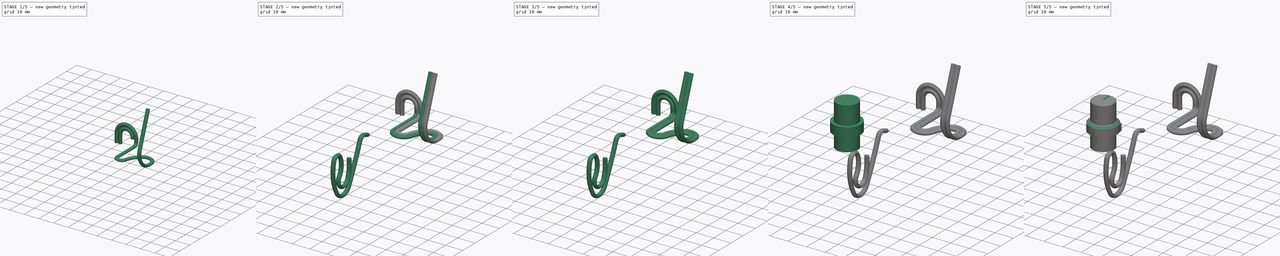
[diagram: build sequence overview — one tinted view per stage of 5, left to right]
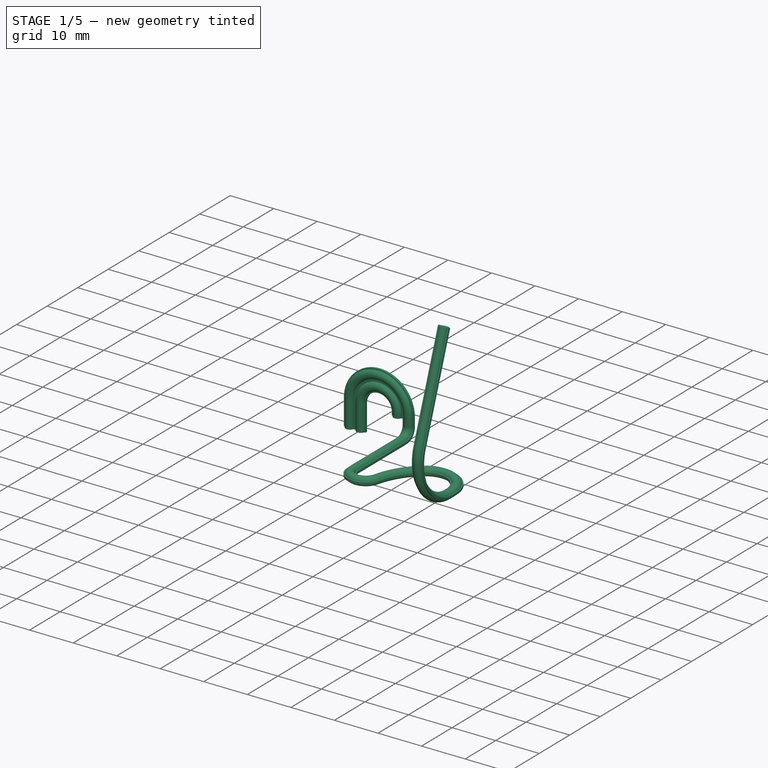
[diagram: stage 1 of 5 — iso view after this stage's code; geometry added in this stage tinted green]
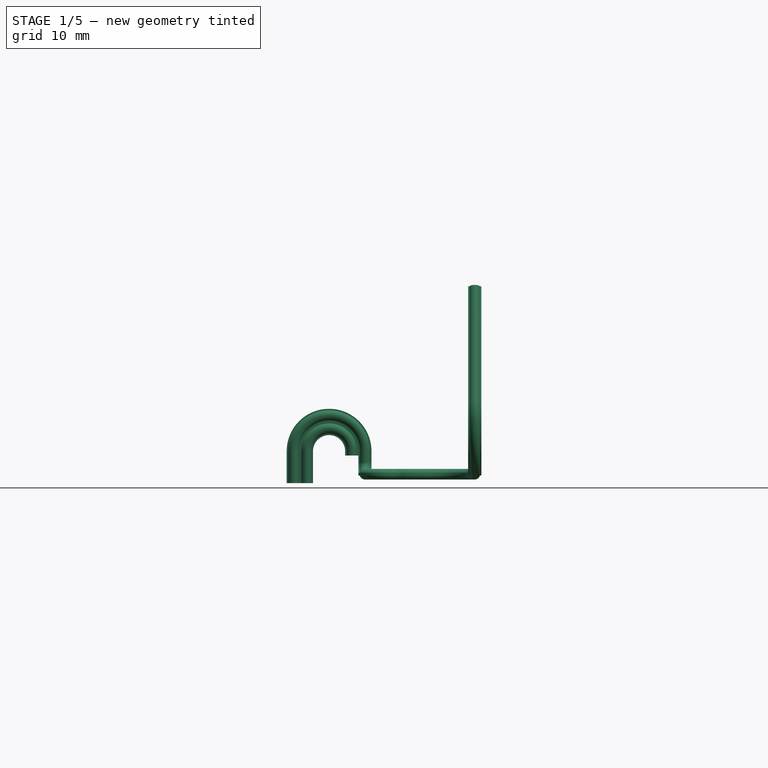
[diagram: stage 1 of 5 — front view after this stage's code; geometry added in this stage tinted green]
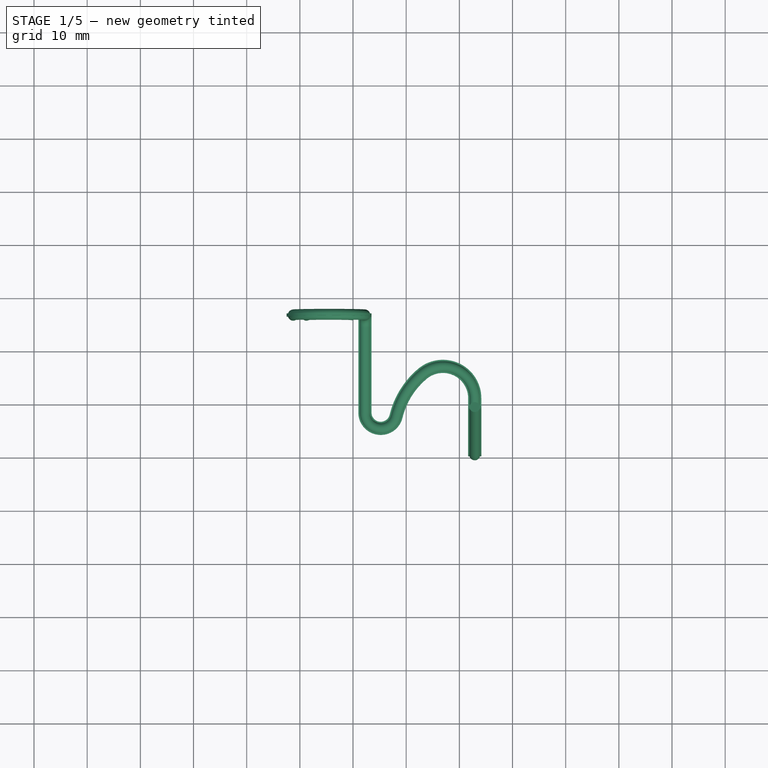
[diagram: stage 1 of 5 — top view after this stage's code; geometry added in this stage tinted green]
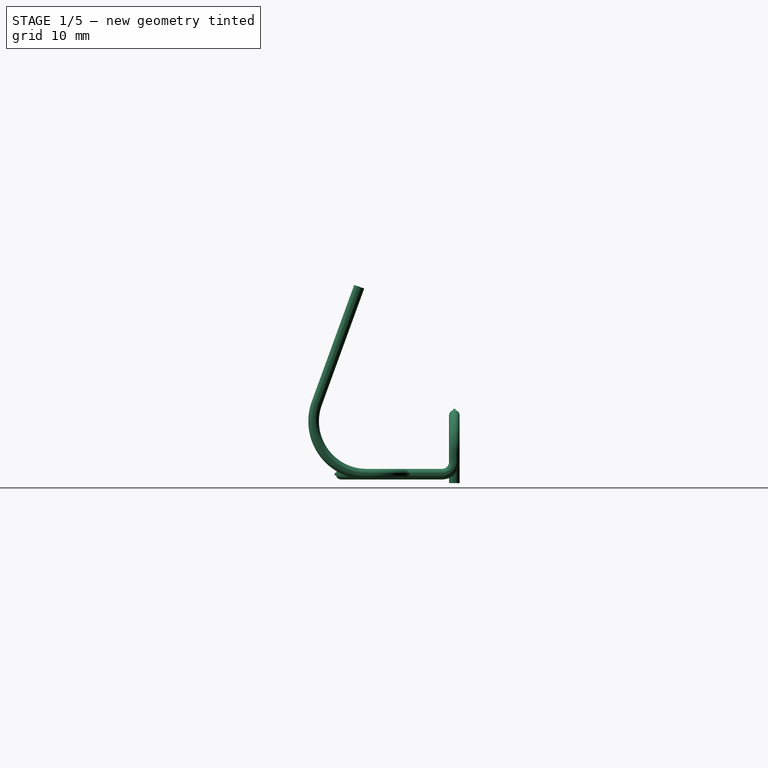
[diagram: stage 1 of 5 — right view after this stage's code; geometry added in this stage tinted green]
FCSTD DOCUMENT  (FreeCAD 1.0R39319 (Git))
Label: TheThing_v81_multiJoin_parts_assy
License: CERN Open Hardware Licence permissive
LicenseURL: https://cern-ohl.web.cern.ch/
objects: Part::Feature×104, Sketcher::SketchObject×22, PartDesign::Body×13, App::Part×12, PartDesign::Plane×11, PartDesign::AdditivePipe×9, PartDesign::FeatureBase×9, PartDesign::SubShapeBinder×9, App::DocumentObjectGroup×5, PartDesign::Pad×5, App::VRMLObject×2, TechDraw::DrawSVGTemplate×1, TechDraw::DrawPage×1, PartDesign::PolarPattern×1, PartDesign::Line×1, PartDesign::Groove×1, PartDesign::Chamfer×1, PartDesign::SubtractivePipe×1
note: 253 computed .brp shape members not serialized (recipe doc carries the construction recipe); baked Part::Feature solids carry a one-line shape summary decoded from their .brp

FEATURE [PartDesign::Body] Body009
  AllowCompound = false
  BaseFeature = -> Body
  Group = -> [Clone008]
  Origin = -> Origin051
  Placement = pos=(-22.86,0,0) rot=(0,0,1;0rad)
  Tip = -> Clone008
FEATURE [App::DocumentObjectGroup] Group003  label="Flat_Cable_10x"
  Group = -> [Body,Body001,Body002,Body003,Body004,Body005,Body006,Body007,Body008,Body009]
FEATURE [Part::Feature] Solid  label="PinSocket_1x02_P2.54mm_Vertical"
  Placement = pos=(30.3,8.89176,17.5439) rot=(-0.171088,0.171088,0.970288;1.60095rad)
  shape: bbox 5.08 x 5.294 x 11.37 mm, 62 faces (baked)
FEATURE [PartDesign::SubShapeBinder] Binder  label="Binder(PinSocket_1x02_P2.54mm_Vertical)"
  BindCopyOnChange = 0
  BindMode = 0
  ClaimChildren = false
  Context = -> Body010 [Binder.]
  Fuse = false
  MakeFace = true
  OffsetFill = false
  OffsetIntersection = false
  OffsetJoinType = 0
  OffsetOpenResult = false
  PartialLoad = false
  Relative = true
  Support = -> [Solid]
  _Version = 8
FEATURE [PartDesign::SubShapeBinder] Binder001  label="Binder001(9V_conn)"
  BindCopyOnChange = 0
  BindMode = 0
  ClaimChildren = false
  Context = -> Body010 [Binder001.]
  Fuse = false
  MakeFace = true
  OffsetFill = false
  OffsetIntersection = false
  OffsetJoinType = 0
  OffsetOpenResult = false
  PartialLoad = false
  Relative = true
  Support = -> [_68005_cp005_cp]
  _Version = 8
FEATURE [PartDesign::SubShapeBinder] Binder002  label="Binder002(Pocket_tab)"
  BindCopyOnChange = 0
  BindMode = 0
  ClaimChildren = false
  Context = -> Body010 [Binder002.]
  Fuse = false
  MakeFace = true
  OffsetFill = false
  OffsetIntersection = false
  OffsetJoinType = 0
  OffsetOpenResult = false
  PartialLoad = false
  Relative = true
  Support = -> [Pocket_tab]
  _Version = 8
FEATURE [Sketcher::SketchObject] Sketch
  ArcFitTolerance = 1e-06
  ExternalGeometry = -> [Binder001]
  FullyConstrained = true
  MakeInternals = false
  MapMode = 5
  Placement = pos=(0,2.34e-14,-19.2055) rot=(0,0,1;0rad)
  sketch-geometry (19):
    g0: ArcOfCircle CenterX=1.23825 CenterY=26.8446 CenterZ=0 NormalX=0 NormalY=0 NormalZ=1 AngleXU=0 Radius=1 StartAngle=3.39427 EndAngle=6.03051
    g1: LineSegment StartX=2.47649 StartY=26.5946 StartZ=0 EndX=2.47649 EndY=27.0946 EndZ=0
    g2: LineSegment StartX=2.47649 StartY=27.0946 StartZ=0 EndX=2.20649 EndY=27.0946 EndZ=0
    g3: LineSegment StartX=0 StartY=27.0946 StartZ=0 EndX=0 EndY=26.5946 EndZ=0
    g4: LineSegment StartX=0 StartY=26.5946 StartZ=0 EndX=0.27 EndY=26.5946 EndZ=0
    g5: GeomPoint [constr] X=1.23825 Y=26.8446 Z=0
    g6: ArcOfCircle CenterX=1.23825 CenterY=26.8446 CenterZ=0 NormalX=0 NormalY=0 NormalZ=1 AngleXU=0 Radius=1 StartAngle=0.25268 EndAngle=2.88891
    g7: LineSegment StartX=0.27 StartY=27.0946 StartZ=0 EndX=0 EndY=27.0946 EndZ=0
    g8: LineSegment StartX=2.20649 StartY=26.5946 StartZ=0 EndX=2.47649 EndY=26.5946 EndZ=0
    g9: LineSegment [constr] StartX=2.47649 StartY=26.8446 StartZ=0 EndX=6.34996 EndY=26.8446 EndZ=0
    g10: ArcOfCircle [constr] CenterX=-1.23825 CenterY=26.8446 CenterZ=0 NormalX=0 NormalY=0 NormalZ=1 AngleXU=0 Radius=1 StartAngle=3.39427 EndAngle=6.03051
    g11: LineSegment [constr] StartX=0 StartY=26.5946 StartZ=0 EndX=0 EndY=27.0946 EndZ=0
    g12: LineSegment [constr] StartX=0 StartY=27.0946 StartZ=0 EndX=-0.27 EndY=27.0946 EndZ=0
    g13: LineSegment [constr] StartX=-2.47649 StartY=27.0946 StartZ=0 EndX=-2.47649 EndY=26.5946 EndZ=0
    g14: LineSegment [constr] StartX=-2.47649 StartY=26.5946 StartZ=0 EndX=-2.20649 EndY=26.5946 EndZ=0
    g15: GeomPoint [constr] X=-1.23825 Y=26.8446 Z=0
    g16: LineSegment [constr] StartX=-2.20649 StartY=27.0946 StartZ=0 EndX=-2.47649 EndY=27.0946 EndZ=0
    g17: ArcOfCircle [constr] CenterX=-1.23825 CenterY=26.8446 CenterZ=0 NormalX=0 NormalY=0 NormalZ=1 AngleXU=0 Radius=1 StartAngle=0.25268 EndAngle=2.88891
    g18: LineSegment [constr] StartX=-0.27 StartY=26.5946 StartZ=0 EndX=0 EndY=26.5946 EndZ=0
  constraints (51):
    c: Coincident(g1,g2)
    c: Coincident(g7,g3)
    c: Coincident(g3,g4)
    c: Coincident(g8,g1)
    c: Horizontal(g2)
    c: Horizontal(g4)
    c: Vertical(g1)
    c: Vertical(g3)
    c: Symmetric(g7,g1,g5)
    c: Coincident(g5,g0)
    c: Diameter(g0) = 2
    c: DistanceY(g3,g3) = 0.5
    c: Equal(g0,g6)
    c: Coincident(g0,g6)
    c: Coincident(g2,g6)
    c: Coincident(g7,g6)
    c: Coincident(g4,g0)
    c: Coincident(g8,g0)
    c: Horizontal(g7)
    c: Horizontal(g8)
    c: Equal(g7,g2)
    c: DistanceX(g7,g7) = 0.27
    c: Horizontal(g9)
    c: Equal(g3,g1)
    c: Symmetric(g1,g1,g9)
    c: Symmetric(g-4,g-4,g9)
    c: Coincident(g11,g12)
    c: Coincident(g16,g13)
    c: Coincident(g13,g14)
    c: Coincident(g18,g11)
    c: Horizontal(g12)
    c: Horizontal(g14)
    c: Vertical(g11)
    c: Vertical(g13)
    c: Symmetric(g16,g11,g15)
    c: Coincident(g15,g10)
    c: Coincident(g16,g17)
    c: Equal(g10,g17)
    c: Coincident(g17,g12)
    c: Coincident(g10,g17)
    c: Coincident(g14,g10)
    c: Coincident(g18,g10)
    c: Horizontal(g16)
    c: Horizontal(g18)
    c: Equal(g12,g16)
    c: Equal(g13,g11)
    c: Equal(g17,g6)
    c: Equal(g12,g7)
    c: Equal(g11,g3)
    c: PointOnObject(g7,g-2)
    c: Coincident(g12,g7)
FEATURE [PartDesign::Plane] DatumPlane001
  AttachmentOffset = pos=(0,0,-0.8) rot=(0,0,1;0rad)
  Length = 60
  MapMode = 5
  Placement = pos=(6.1e-15,26.832,3.28e-14) rot=(0,0.707107,0.707107;3.14159rad)
  ResizeMode = 0
  Width = 60
FEATURE [Sketcher::SketchObject] Sketch003
  ArcFitTolerance = 1e-06
  ExternalGeometry = -> [Sketch]
  FullyConstrained = true
  MakeInternals = false
  MapMode = 5
  Placement = pos=(6.1e-15,26.832,3.28e-14) rot=(0,0.707107,0.707107;3.14159rad)
  sketch-geometry (3):
    g0: LineSegment StartX=-3.73e-14 StartY=-19.2055 StartZ=0 EndX=-3.73e-14 EndY=-13.2055 EndZ=0
    g1: ArcOfCircle CenterX=-5.5 CenterY=-13.2055 CenterZ=0 NormalX=0 NormalY=0 NormalZ=1 AngleXU=0 Radius=5.5 StartAngle=1.88e-14 EndAngle=3.14159
    g2: LineSegment StartX=-11 StartY=-13.2055 StartZ=0 EndX=-11 EndY=-14.0055 EndZ=0
  constraints (8):
    c: Vertical(g0)
    c: Tangent(g0,g1) = -1.5708
    c: Angle(g1) = 3.14159
    c: Tangent(g1,g2) = -1.5708
    c: DistanceY(g0,g0) = 6
    c: Radius(g1) = 5.5
    c: DistanceY(g2,g2) = 0.8
    c: Coincident(g0,g-3)
FEATURE [PartDesign::Plane] DatumPlane002
  AttachmentOffset = pos=(0,0,0) rot=(0.57735,0.57735,0.57735;2.0944rad)
  Length = 62.0136
  MapMode = 7
  Placement = pos=(11,26.832,-13.2055) rot=(0.57735,0.57735,0.57735;2.0944rad)
  ResizeMode = 0
  Width = 60.1816
FEATURE [Sketcher::SketchObject] Sketch004
  ArcFitTolerance = 1e-06
  ExternalGeometry = -> [Sketch003]
  FullyConstrained = true
  MakeInternals = false
  MapMode = 5
  Placement = pos=(11,26.832,-13.2055) rot=(0.57735,0.57735,0.57735;2.0944rad)
  sketch-geometry (3):
    g0: LineSegment StartX=0 StartY=-0.8 StartZ=0 EndX=0 EndY=-2 EndZ=0
    g1: ArcOfCircle CenterX=-2.3 CenterY=-2 CenterZ=0 NormalX=0 NormalY=0 NormalZ=1 AngleXU=0 Radius=2.3 StartAngle=4.71239 EndAngle=6.28319
    g2: LineSegment StartX=-2.3 StartY=-4.3 StartZ=0 EndX=-18.3 EndY=-4.3 EndZ=0
  constraints (8):
    c: Coincident(g-3,g0)
    c: PointOnObject(g0,g-2)
    c: Tangent(g0,g1) = 1.5708
    c: Angle(g1) = 1.5708
    c: Tangent(g1,g2) = 1.5708
    c: DistanceY(g0,g0) = 1.2
    c: Radius(g1) = 2.3
    c: DistanceX(g2,g2) = 16
FEATURE [PartDesign::Plane] DatumPlane003
  AttachmentOffset = pos=(0,0,0) rot=(-0.57735,0.57735,0.57735;2.0944rad)
  Length = 60
  MapMode = 45
  Placement = pos=(11,16.532,-17.5055) rot=(0,0,1;4.71239rad)
  ResizeMode = 0
  Width = 60
FEATURE [Sketcher::SketchObject] Sketch005
  ArcFitTolerance = 1e-06
  ExternalGeometry = -> [Sketch004,Binder]
  FullyConstrained = false
  MakeInternals = false
  MapMode = 5
  Placement = pos=(11,16.532,-17.5055) rot=(0,0,-1;1.5708rad)
  sketch-geometry (3):
    g0: ArcOfCircle CenterX=8 CenterY=4.21059 CenterZ=0 NormalX=0 NormalY=0 NormalZ=1 AngleXU=0 Radius=4.21059 StartAngle=4.71239 EndAngle=7.61609
    g1: ArcOfCircle CenterX=12.2495 CenterY=21.7356 CenterZ=0 NormalX=0 NormalY=0 NormalZ=1 AngleXU=0 Radius=13.8222 StartAngle=3.8393 EndAngle=4.4745
    g2: ArcOfCircle CenterX=5.29691 CenterY=15.9067 CenterZ=0 NormalX=0 NormalY=0 NormalZ=1 AngleXU=0 Radius=4.74953 StartAngle=1.5708 EndAngle=3.8393
  constraints (5):
    c: Tangent(g0,g1) = 1.5708
    c: Tangent(g1,g2) = -1.5708
    c: PointOnObject(g2,g-5)
    c: Perpendicular(g2,g-5)
    c: Tangent(g0,g-3) = -1.5708
FEATURE [PartDesign::Plane] DatumPlane004
  AttachmentOffset = pos=(0,0,-2.5) rot=(0,0,1;0rad)
  Length = 60
  MapMode = 5
  Placement = pos=(31.61,3.25e-14,6e-16) rot=(0.57735,0.57735,0.57735;2.0944rad)
  ResizeMode = 0
  Width = 60
FEATURE [Sketcher::SketchObject] Sketch006
  ArcFitTolerance = 1e-06
  ExternalGeometry = -> [Sketch005,Binder]
  FullyConstrained = false
  MakeInternals = false
  MapMode = 5
  Placement = pos=(31.61,3.25e-14,6e-16) rot=(0.57735,0.57735,0.57735;2.0944rad)
  sketch-geometry (3):
    g0: LineSegment StartX=11.2351 StartY=-17.5055 StartZ=0 EndX=10.3247 EndY=-17.5055 EndZ=0
    g1: ArcOfCircle CenterX=10.3247 CenterY=-7.56961 CenterZ=0 NormalX=0 NormalY=0 NormalZ=1 AngleXU=0 Radius=9.9359 StartAngle=2.79253 EndAngle=4.71239
    g2: LineSegment StartX=0.988054 StartY=-4.17133 StartZ=0 EndX=8.96016 EndY=17.7319 EndZ=0
  constraints (6):
    c: Coincident(g0,g-3)
    c: Horizontal(g0)
    c: Tangent(g0,g1) = 1.5708
    c: Perpendicular(g2,g-4)
    c: Symmetric(g-4,g-4,g2)
    c: Tangent(g1,g2) = 1.5708
FEATURE [TechDraw::DrawSVGTemplate] Template
  Height = 210
  Orientation = 1
  Template = <userpath>/Documents/FreeCAD/Templates/A4_Landscape_blank.svg
  Width = 297
FEATURE [TechDraw::DrawPage] Page
  KeepUpdated = true
  NextBalloonIndex = 1
  ProjectionType = 1
  Template = -> Template
FEATURE [PartDesign::AdditivePipe] AdditivePipe001
  AuxilleryCurvelinear = true
  AuxillerySpineTangent = false
  Binormal = (0,0,0)
  Mode = 0
  Placement = pos=(0,2.34e-14,-19.2055) rot=(0,0,1;0rad)
  Profile = -> Sketch
  Refine = true
  Spine = -> Sketch003
  SpineTangent = false
  Suppressed = false
  Transformation = 0
  Transition = 0
FEATURE [PartDesign::SubShapeBinder] Binder003  label="Binder(PinSocket_1x02_P2.54mm_Vertical)001"
  BindCopyOnChange = 0
  BindMode = 0
  ClaimChildren = false
  Context = -> Body011 [Binder003.]
  Fuse = false
  MakeFace = true
  OffsetFill = false
  OffsetIntersection = false
  OffsetJoinType = 0
  OffsetOpenResult = false
  PartialLoad = false
  Relative = true
  _Version = 8
FEATURE [Sketcher::SketchObject] Sketch007
  ArcFitTolerance = 1e-06
  ExternalGeometry = -> [Binder003]
  FullyConstrained = true
  MakeInternals = false
  MapMode = 5
  Placement = pos=(0,2.34e-14,-19.2055) rot=(0,0,1;0rad)
  sketch-geometry (19):
    g0: ArcOfCircle [constr] CenterX=1.23825 CenterY=11.4144 CenterZ=0 NormalX=0 NormalY=0 NormalZ=1 AngleXU=0 Radius=1 StartAngle=3.39427 EndAngle=6.03051
    g1: LineSegment [constr] StartX=2.47649 StartY=11.1644 StartZ=0 EndX=2.47649 EndY=11.6644 EndZ=0
    g2: LineSegment [constr] StartX=2.47649 StartY=11.6644 StartZ=0 EndX=2.20649 EndY=11.6644 EndZ=0
    g3: LineSegment StartX=0 StartY=11.6644 StartZ=0 EndX=0 EndY=11.1644 EndZ=0
    g4: LineSegment [constr] StartX=0 StartY=11.1644 StartZ=0 EndX=0.27 EndY=11.1644 EndZ=0
    g5: GeomPoint [constr] X=1.23825 Y=11.4144 Z=0
    g6: ArcOfCircle [constr] CenterX=1.23825 CenterY=11.4144 CenterZ=0 NormalX=0 NormalY=0 NormalZ=1 AngleXU=0 Radius=1 StartAngle=0.25268 EndAngle=2.88891
    g7: LineSegment [constr] StartX=0.27 StartY=11.6644 StartZ=0 EndX=0 EndY=11.6644 EndZ=0
    g8: LineSegment [constr] StartX=2.20649 StartY=11.1644 StartZ=0 EndX=2.47649 EndY=11.1644 EndZ=0
    g9: LineSegment [constr] StartX=2.47649 StartY=11.4144 StartZ=0 EndX=30.3 EndY=11.4144 EndZ=0
    g10: ArcOfCircle CenterX=-1.23825 CenterY=11.4144 CenterZ=0 NormalX=0 NormalY=0 NormalZ=1 AngleXU=0 Radius=1 StartAngle=3.39427 EndAngle=6.03051
    g11: LineSegment [constr] StartX=0 StartY=11.1644 StartZ=0 EndX=0 EndY=11.6644 EndZ=0
    g12: LineSegment StartX=0 StartY=11.6644 StartZ=0 EndX=-0.27 EndY=11.6644 EndZ=0
    g13: LineSegment StartX=-2.47649 StartY=11.6644 StartZ=0 EndX=-2.47649 EndY=11.1644 EndZ=0
    g14: LineSegment StartX=-2.47649 StartY=11.1644 StartZ=0 EndX=-2.20649 EndY=11.1644 EndZ=0
    g15: GeomPoint [constr] X=-1.23825 Y=11.4144 Z=0
    g16: LineSegment StartX=-2.20649 StartY=11.6644 StartZ=0 EndX=-2.47649 EndY=11.6644 EndZ=0
    g17: ArcOfCircle CenterX=-1.23825 CenterY=11.4144 CenterZ=0 NormalX=0 NormalY=0 NormalZ=1 AngleXU=0 Radius=1 StartAngle=0.25268 EndAngle=2.88891
    g18: LineSegment StartX=-0.27 StartY=11.1644 StartZ=0 EndX=0 EndY=11.1644 EndZ=0
  constraints (51):
    c: Coincident(g1,g2)
    c: Coincident(g7,g3)
    c: Coincident(g3,g4)
    c: Coincident(g8,g1)
    c: Horizontal(g2)
    c: Horizontal(g4)
    c: Vertical(g1)
    c: Vertical(g3)
    c: Symmetric(g7,g1,g5)
    c: Coincident(g5,g0)
    c: Diameter(g0) = 2
    c: DistanceY(g3,g3) = 0.5
    c: Equal(g0,g6)
    c: Coincident(g0,g6)
    c: Coincident(g2,g6)
    c: Coincident(g7,g6)
    c: Coincident(g4,g0)
    c: Coincident(g8,g0)
    c: Horizontal(g7)
    c: Horizontal(g8)
    c: Equal(g7,g2)
    c: DistanceX(g7,g7) = 0.27
    c: Horizontal(g9)
    c: Equal(g3,g1)
    c: Symmetric(g1,g1,g9)
    c: Symmetric(g-4,g-4,g9)
    c: Coincident(g11,g12)
    c: Coincident(g16,g13)
    c: Coincident(g13,g14)
    c: Coincident(g18,g11)
    c: Horizontal(g12)
    c: Horizontal(g14)
    c: Vertical(g11)
    c: Vertical(g13)
    c: Symmetric(g16,g11,g15)
    c: Coincident(g15,g10)
    c: Coincident(g16,g17)
    c: Equal(g10,g17)
    c: Coincident(g17,g12)
    c: Coincident(g10,g17)
    c: Coincident(g14,g10)
    c: Coincident(g18,g10)
    c: Horizontal(g16)
    c: Horizontal(g18)
    c: Equal(g12,g16)
    c: Equal(g13,g11)
    c: Equal(g17,g6)
    c: Equal(g12,g7)
    c: Equal(g11,g3)
    c: PointOnObject(g7,g-2)
    c: Coincident(g12,g7)
FEATURE [PartDesign::Body] Body010  label="Bat+"
  AllowCompound = false
  Group = -> [Binder,Binder001,Binder002,Sketch,DatumPlane001,Sketch003,DatumPlane002,Sketch004,DatumPlane003,Sketch005,DatumPlane004,Sketch006,Sketch007,AdditivePipe001,AdditivePipe002,AdditivePipe003,AdditivePipe004]
  Origin = -> Origin052
  Tip = -> AdditivePipe004
FEATURE [PartDesign::SubShapeBinder] Binder004  label="Binder001(9V_conn)001"
  BindCopyOnChange = 0
  BindMode = 0
  ClaimChildren = false
  Context = -> Body011 [Binder004.]
  Fuse = false
  MakeFace = true
  OffsetFill = false
  OffsetIntersection = false
  OffsetJoinType = 0
  OffsetOpenResult = false
  PartialLoad = false
  Relative = true
  _Version = 8
FEATURE [PartDesign::SubShapeBinder] Binder005  label="Binder002(Pocket_tab)001"
  BindCopyOnChange = 0
  BindMode = 0
  ClaimChildren = false
  Context = -> Body011 [Binder005.]
  Fuse = false
  MakeFace = true
  OffsetFill = false
  OffsetIntersection = false
  OffsetJoinType = 0
  OffsetOpenResult = false
  PartialLoad = false
  Relative = true
  _Version = 8
FEATURE [PartDesign::Plane] DatumPlane005
  AttachmentOffset = pos=(0,0,-0.8) rot=(0,0,1;0rad)
  Length = 60
  MapMode = 5
  Placement = pos=(6.1e-15,26.832,3.28e-14) rot=(0,0.707107,0.707107;3.14159rad)
  ResizeMode = 0
  Width = 60
FEATURE [PartDesign::Plane] DatumPlane006
  AttachmentOffset = pos=(0,0,0) rot=(0.57735,0.57735,0.57735;2.0944rad)
  Length = 62.0136
  MapMode = 7
  Placement = pos=(11,26.832,-13.2055) rot=(0.57735,0.57735,0.57735;2.0944rad)
  ResizeMode = 0
  Width = 60.1816
FEATURE [PartDesign::Plane] DatumPlane007
  AttachmentOffset = pos=(0,0,0) rot=(-0.57735,0.57735,0.57735;2.0944rad)
  Length = 60
  MapMode = 45
  Placement = pos=(11,16.532,-17.5055) rot=(0,0,1;4.71239rad)
  ResizeMode = 0
  Width = 60
FEATURE [PartDesign::Plane] DatumPlane008
  AttachmentOffset = pos=(0,0,-2.5) rot=(0,0,1;0rad)
  Length = 60
  MapMode = 5
  Placement = pos=(31.61,3.25e-14,6e-16) rot=(0.57735,0.57735,0.57735;2.0944rad)
  ResizeMode = 0
  Width = 60
FEATURE [Sketcher::SketchObject] Sketch008
  ArcFitTolerance = 1e-06
  ExternalGeometry = -> [Binder004]
  FullyConstrained = true
  MakeInternals = false
  MapMode = 5
  Placement = pos=(0,2.34e-14,-19.2055) rot=(0,0,1;0rad)
  sketch-geometry (19):
    g0: ArcOfCircle CenterX=1.23825 CenterY=26.8446 CenterZ=0 NormalX=0 NormalY=0 NormalZ=1 AngleXU=0 Radius=1 StartAngle=3.39427 EndAngle=6.03051
    g1: LineSegment StartX=2.47649 StartY=26.5946 StartZ=0 EndX=2.47649 EndY=27.0946 EndZ=0
    g2: LineSegment StartX=2.47649 StartY=27.0946 StartZ=0 EndX=2.20649 EndY=27.0946 EndZ=0
    g3: LineSegment StartX=0 StartY=27.0946 StartZ=0 EndX=0 EndY=26.5946 EndZ=0
    g4: LineSegment StartX=0 StartY=26.5946 StartZ=0 EndX=0.27 EndY=26.5946 EndZ=0
    g5: GeomPoint [constr] X=1.23825 Y=26.8446 Z=0
    g6: ArcOfCircle CenterX=1.23825 CenterY=26.8446 CenterZ=0 NormalX=0 NormalY=0 NormalZ=1 AngleXU=0 Radius=1 StartAngle=0.25268 EndAngle=2.88891
    g7: LineSegment StartX=0.27 StartY=27.0946 StartZ=0 EndX=0 EndY=27.0946 EndZ=0
    g8: LineSegment StartX=2.20649 StartY=26.5946 StartZ=0 EndX=2.47649 EndY=26.5946 EndZ=0
    g9: LineSegment [constr] StartX=2.47649 StartY=26.8446 StartZ=0 EndX=6.34996 EndY=26.8446 EndZ=0
    g10: ArcOfCircle [constr] CenterX=-1.23825 CenterY=26.8446 CenterZ=0 NormalX=0 NormalY=0 NormalZ=1 AngleXU=0 Radius=1 StartAngle=3.39427 EndAngle=6.03051
    g11: LineSegment [constr] StartX=0 StartY=26.5946 StartZ=0 EndX=0 EndY=27.0946 EndZ=0
    g12: LineSegment [constr] StartX=0 StartY=27.0946 StartZ=0 EndX=-0.27 EndY=27.0946 EndZ=0
    g13: LineSegment [constr] StartX=-2.47649 StartY=27.0946 StartZ=0 EndX=-2.47649 EndY=26.5946 EndZ=0
    g14: LineSegment [constr] StartX=-2.47649 StartY=26.5946 StartZ=0 EndX=-2.20649 EndY=26.5946 EndZ=0
    g15: GeomPoint [constr] X=-1.23825 Y=26.8446 Z=0
    g16: LineSegment [constr] StartX=-2.20649 StartY=27.0946 StartZ=0 EndX=-2.47649 EndY=27.0946 EndZ=0
    g17: ArcOfCircle [constr] CenterX=-1.23825 CenterY=26.8446 CenterZ=0 NormalX=0 NormalY=0 NormalZ=1 AngleXU=0 Radius=1 StartAngle=0.25268 EndAngle=2.88891
    g18: LineSegment [constr] StartX=-0.27 StartY=26.5946 StartZ=0 EndX=0 EndY=26.5946 EndZ=0
  constraints (51):
    c: Coincident(g1,g2)
    c: Coincident(g7,g3)
    c: Coincident(g3,g4)
    c: Coincident(g8,g1)
    c: Horizontal(g2)
    c: Horizontal(g4)
    c: Vertical(g1)
    c: Vertical(g3)
    c: Symmetric(g7,g1,g5)
    c: Coincident(g5,g0)
    c: Diameter(g0) = 2
    c: DistanceY(g3,g3) = 0.5
    c: Equal(g0,g6)
    c: Coincident(g0,g6)
    c: Coincident(g2,g6)
    c: Coincident(g7,g6)
    c: Coincident(g4,g0)
    c: Coincident(g8,g0)
    c: Horizontal(g7)
    c: Horizontal(g8)
    c: Equal(g7,g2)
    c: DistanceX(g7,g7) = 0.27
    c: Horizontal(g9)
    c: Equal(g3,g1)
    c: Symmetric(g1,g1,g9)
    c: Symmetric(g-4,g-4,g9)
    c: Coincident(g11,g12)
    c: Coincident(g16,g13)
    c: Coincident(g13,g14)
    c: Coincident(g18,g11)
    c: Horizontal(g12)
    c: Horizontal(g14)
    c: Vertical(g11)
    c: Vertical(g13)
    c: Symmetric(g16,g11,g15)
    c: Coincident(g15,g10)
    c: Coincident(g16,g17)
    c: Equal(g10,g17)
    c: Coincident(g17,g12)
    c: Coincident(g10,g17)
    c: Coincident(g14,g10)
    c: Coincident(g18,g10)
    c: Horizontal(g16)
    c: Horizontal(g18)
    c: Equal(g12,g16)
    c: Equal(g13,g11)
    c: Equal(g17,g6)
    c: Equal(g12,g7)
    c: Equal(g11,g3)
    c: PointOnObject(g7,g-2)
    c: Coincident(g12,g7)
FEATURE [Sketcher::SketchObject] Sketch009
  ArcFitTolerance = 1e-06
  ExternalGeometry = -> [Sketch008]
  FullyConstrained = true
  MakeInternals = false
  MapMode = 5
  Placement = pos=(6.1e-15,26.832,3.28e-14) rot=(0,0.707107,0.707107;3.14159rad)
  sketch-geometry (3):
    g0: LineSegment StartX=-3.73e-14 StartY=-19.2055 StartZ=0 EndX=-3.73e-14 EndY=-13.2055 EndZ=0
    g1: ArcOfCircle CenterX=-5.5 CenterY=-13.2055 CenterZ=0 NormalX=0 NormalY=0 NormalZ=1 AngleXU=0 Radius=5.5 StartAngle=1.88e-14 EndAngle=3.14159
    g2: LineSegment StartX=-11 StartY=-13.2055 StartZ=0 EndX=-11 EndY=-14.0055 EndZ=0
  constraints (8):
    c: Vertical(g0)
    c: Tangent(g0,g1) = -1.5708
    c: Angle(g1) = 3.14159
    c: Tangent(g1,g2) = -1.5708
    c: DistanceY(g0,g0) = 6
    c: Radius(g1) = 5.5
    c: DistanceY(g2,g2) = 0.8
    c: Coincident(g0,g-3)
FEATURE [Sketcher::SketchObject] Sketch010
  ArcFitTolerance = 1e-06
  ExternalGeometry = -> [Sketch009]
  FullyConstrained = true
  MakeInternals = false
  MapMode = 5
  Placement = pos=(11,26.832,-13.2055) rot=(0.57735,0.57735,0.57735;2.0944rad)
  sketch-geometry (3):
    g0: LineSegment StartX=0 StartY=-0.8 StartZ=0 EndX=0 EndY=-2 EndZ=0
    g1: ArcOfCircle CenterX=-2.3 CenterY=-2 CenterZ=0 NormalX=0 NormalY=0 NormalZ=1 AngleXU=0 Radius=2.3 StartAngle=4.71239 EndAngle=6.28319
    g2: LineSegment StartX=-2.3 StartY=-4.3 StartZ=0 EndX=-18.3 EndY=-4.3 EndZ=0
  constraints (8):
    c: Coincident(g-3,g0)
    c: PointOnObject(g0,g-2)
    c: Tangent(g0,g1) = 1.5708
    c: Angle(g1) = 1.5708
    c: Tangent(g1,g2) = 1.5708
    c: DistanceY(g0,g0) = 1.2
    c: Radius(g1) = 2.3
    c: DistanceX(g2,g2) = 16
FEATURE [Sketcher::SketchObject] Sketch011
  ArcFitTolerance = 1e-06
  ExternalGeometry = -> [Sketch010,Binder003]
  FullyConstrained = false
  MakeInternals = false
  MapMode = 5
  Placement = pos=(11,16.532,-17.5055) rot=(0,0,-1;1.5708rad)
  sketch-geometry (3):
    g0: ArcOfCircle CenterX=8 CenterY=4.21059 CenterZ=0 NormalX=0 NormalY=0 NormalZ=1 AngleXU=0 Radius=4.21059 StartAngle=4.71239 EndAngle=7.61609
    g1: ArcOfCircle CenterX=12.2495 CenterY=21.7356 CenterZ=0 NormalX=0 NormalY=0 NormalZ=1 AngleXU=0 Radius=13.8222 StartAngle=3.8393 EndAngle=4.4745
    g2: ArcOfCircle CenterX=5.29691 CenterY=15.9067 CenterZ=0 NormalX=0 NormalY=0 NormalZ=1 AngleXU=0 Radius=4.74953 StartAngle=1.5708 EndAngle=3.8393
  constraints (5):
    c: Tangent(g0,g1) = 1.5708
    c: Tangent(g1,g2) = -1.5708
    c: PointOnObject(g2,g-5)
    c: Perpendicular(g2,g-5)
    c: Tangent(g0,g-3) = -1.5708
FEATURE [Sketcher::SketchObject] Sketch012
  ArcFitTolerance = 1e-06
  ExternalGeometry = -> [Sketch011,Binder003]
  FullyConstrained = false
  MakeInternals = false
  MapMode = 5
  Placement = pos=(31.61,3.25e-14,6e-16) rot=(0.57735,0.57735,0.57735;2.0944rad)
  sketch-geometry (3):
    g0: LineSegment StartX=11.2351 StartY=-17.5055 StartZ=0 EndX=10.3247 EndY=-17.5055 EndZ=0
    g1: ArcOfCircle CenterX=10.3247 CenterY=-7.56961 CenterZ=0 NormalX=0 NormalY=0 NormalZ=1 AngleXU=0 Radius=9.9359 StartAngle=2.79253 EndAngle=4.71239
    g2: LineSegment StartX=0.988054 StartY=-4.17133 StartZ=0 EndX=8.96016 EndY=17.7319 EndZ=0
  constraints (6):
    c: Coincident(g0,g-3)
    c: Horizontal(g0)
    c: Tangent(g0,g1) = 1.5708
    c: Perpendicular(g2,g-4)
    c: Symmetric(g-4,g-4,g2)
    c: Tangent(g1,g2) = 1.5708
FEATURE [Sketcher::SketchObject] Sketch013
  ArcFitTolerance = 1e-06
  ExternalGeometry = -> [Binder004]
  FullyConstrained = true
  MakeInternals = false
  MapMode = 5
  Placement = pos=(0,2.34e-14,-19.2055) rot=(0,0,1;0rad)
  sketch-geometry (19):
    g0: ArcOfCircle [constr] CenterX=1.23825 CenterY=26.8446 CenterZ=0 NormalX=0 NormalY=0 NormalZ=1 AngleXU=0 Radius=1 StartAngle=3.39427 EndAngle=6.03051
    g1: LineSegment [constr] StartX=2.47649 StartY=26.5946 StartZ=0 EndX=2.47649 EndY=27.0946 EndZ=0
    g2: LineSegment [constr] StartX=2.47649 StartY=27.0946 StartZ=0 EndX=2.20649 EndY=27.0946 EndZ=0
    g3: LineSegment StartX=0 StartY=27.0946 StartZ=0 EndX=0 EndY=26.5946 EndZ=0
    g4: LineSegment [constr] StartX=0 StartY=26.5946 StartZ=0 EndX=0.27 EndY=26.5946 EndZ=0
    g5: GeomPoint [constr] X=1.23825 Y=26.8446 Z=0
    g6: ArcOfCircle [constr] CenterX=1.23825 CenterY=26.8446 CenterZ=0 NormalX=0 NormalY=0 NormalZ=1 AngleXU=0 Radius=1 StartAngle=0.25268 EndAngle=2.88891
    g7: LineSegment [constr] StartX=0.27 StartY=27.0946 StartZ=0 EndX=0 EndY=27.0946 EndZ=0
    g8: LineSegment [constr] StartX=2.20649 StartY=26.5946 StartZ=0 EndX=2.47649 EndY=26.5946 EndZ=0
    g9: LineSegment [constr] StartX=2.47649 StartY=26.8446 StartZ=0 EndX=6.34996 EndY=26.8446 EndZ=0
    g10: ArcOfCircle CenterX=-1.23825 CenterY=26.8446 CenterZ=0 NormalX=0 NormalY=0 NormalZ=1 AngleXU=0 Radius=1 StartAngle=3.39427 EndAngle=6.03051
    g11: LineSegment [constr] StartX=0 StartY=26.5946 StartZ=0 EndX=0 EndY=27.0946 EndZ=0
    g12: LineSegment StartX=0 StartY=27.0946 StartZ=0 EndX=-0.27 EndY=27.0946 EndZ=0
    g13: LineSegment StartX=-2.47649 StartY=27.0946 StartZ=0 EndX=-2.47649 EndY=26.5946 EndZ=0
    g14: LineSegment StartX=-2.47649 StartY=26.5946 StartZ=0 EndX=-2.20649 EndY=26.5946 EndZ=0
    g15: GeomPoint [constr] X=-1.23825 Y=26.8446 Z=0
    g16: LineSegment StartX=-2.20649 StartY=27.0946 StartZ=0 EndX=-2.47649 EndY=27.0946 EndZ=0
    g17: ArcOfCircle CenterX=-1.23825 CenterY=26.8446 CenterZ=0 NormalX=0 NormalY=0 NormalZ=1 AngleXU=0 Radius=1 StartAngle=0.25268 EndAngle=2.88891
    g18: LineSegment StartX=-0.27 StartY=26.5946 StartZ=0 EndX=0 EndY=26.5946 EndZ=0
  constraints (51):
    c: Coincident(g1,g2)
    c: Coincident(g7,g3)
    c: Coincident(g3,g4)
    c: Coincident(g8,g1)
    c: Horizontal(g2)
    c: Horizontal(g4)
    c: Vertical(g1)
    c: Vertical(g3)
    c: Symmetric(g7,g1,g5)
    c: Coincident(g5,g0)
    c: Diameter(g0) = 2
    c: DistanceY(g3,g3) = 0.5
    c: Equal(g0,g6)
    c: Coincident(g0,g6)
    c: Coincident(g2,g6)
    c: Coincident(g7,g6)
    c: Coincident(g4,g0)
    c: Coincident(g8,g0)
    c: Horizontal(g7)
    c: Horizontal(g8)
    c: Equal(g7,g2)
    c: DistanceX(g7,g7) = 0.27
    c: Horizontal(g9)
    c: Equal(g3,g1)
    c: Symmetric(g1,g1,g9)
    c: Coincident(g11,g12)
    c: Coincident(g16,g13)
    c: Coincident(g13,g14)
    c: Coincident(g18,g11)
    c: Horizontal(g12)
    c: Horizontal(g14)
    c: Vertical(g11)
    c: Vertical(g13)
    c: Symmetric(g16,g11,g15)
    c: Coincident(g15,g10)
    c: Coincident(g16,g17)
    c: Equal(g10,g17)
    c: Coincident(g17,g12)
    c: Coincident(g10,g17)
    c: Coincident(g14,g10)
    c: Coincident(g18,g10)
    c: Horizontal(g16)
    c: Horizontal(g18)
    c: Equal(g12,g16)
    c: Equal(g13,g11)
    c: Equal(g17,g6)
    c: Equal(g12,g7)
    c: Equal(g11,g3)
    c: PointOnObject(g7,g-2)
    c: Coincident(g12,g7)
    c: Symmetric(g-3,g-3,g9)
FEATURE [PartDesign::AdditivePipe] AdditivePipe005
  AuxilleryCurvelinear = true
  AuxillerySpineTangent = false
  Binormal = (0,0,0)
  Mode = 0
  Placement = pos=(0,2.34e-14,-19.2055) rot=(0,0,1;0rad)
  Profile = -> Sketch013
  Refine = true
  Spine = -> Sketch009
  SpineTangent = false
  Suppressed = false
  Transformation = 0
  Transition = 0
FEATURE [PartDesign::AdditivePipe] AdditivePipe006
  AuxilleryCurvelinear = true
  AuxillerySpineTangent = false
  BaseFeature = -> AdditivePipe005
  Binormal = (0,0,0)
  Mode = 0
  Placement = pos=(0,2.34e-14,-19.2055) rot=(0,0,1;0rad)
  Profile = -> AdditivePipe005 [Face11]
  Refine = true
  Spine = -> Sketch010
  SpineTangent = false
  Suppressed = false
  Transformation = 0
  Transition = 0
FEATURE [PartDesign::AdditivePipe] AdditivePipe007
  AuxilleryCurvelinear = true
  AuxillerySpineTangent = false
  BaseFeature = -> AdditivePipe006
  Binormal = (0,0,0)
  Mode = 0
  Placement = pos=(0,2.34e-14,-19.2055) rot=(0,0,1;0rad)
  Profile = -> AdditivePipe006 [Face17]
  Refine = true
  Spine = -> Sketch011
  SpineTangent = false
  Suppressed = false
  Transformation = 0
  Transition = 0
FEATURE [PartDesign::AdditivePipe] AdditivePipe008
  AuxilleryCurvelinear = true
  AuxillerySpineTangent = false
  BaseFeature = -> AdditivePipe007
  Binormal = (0,0,0)
  Mode = 0
  Placement = pos=(0,2.34e-14,-19.2055) rot=(0,0,1;0rad)
  Profile = -> AdditivePipe007 [Face36]
  Refine = true
  Spine = -> Sketch012
  SpineTangent = false
  Suppressed = false
  Transformation = 0
  Transition = 0
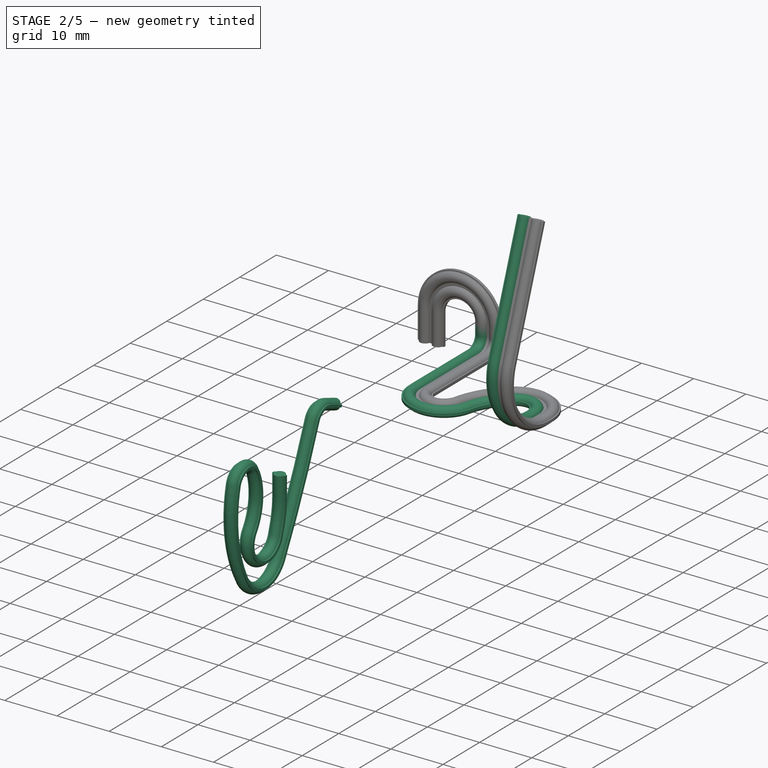
[diagram: stage 2 of 5 — iso view after this stage's code; geometry added in this stage tinted green]
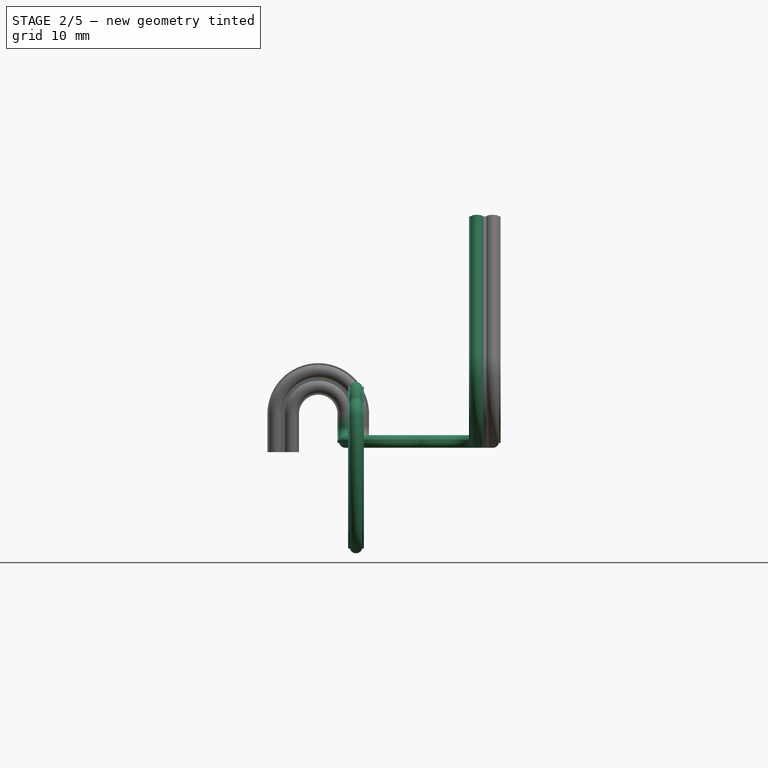
[diagram: stage 2 of 5 — front view after this stage's code; geometry added in this stage tinted green]
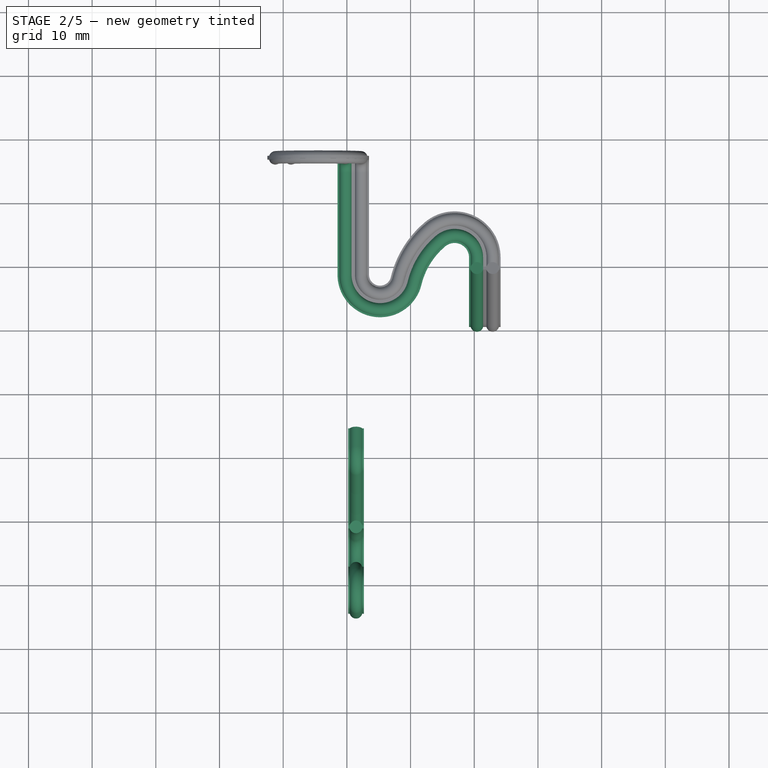
[diagram: stage 2 of 5 — top view after this stage's code; geometry added in this stage tinted green]
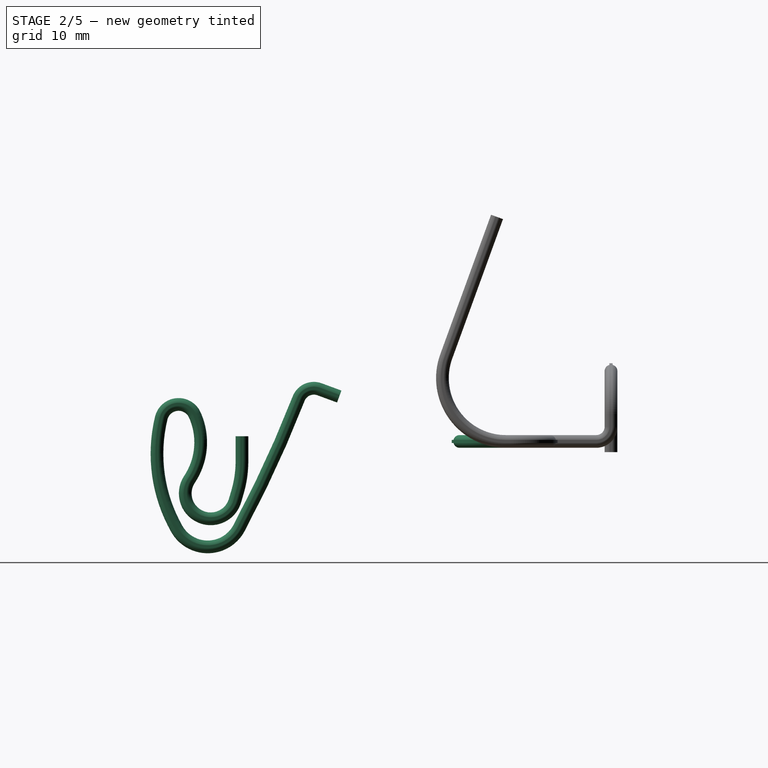
[diagram: stage 2 of 5 — right view after this stage's code; geometry added in this stage tinted green]
FEATURE [Part::Feature] Pad001_tab
  shape: bbox 2.8 x 80.6 x 100.6 mm, 98 faces (baked)
FEATURE [Part::Feature] Pad002_tab
  shape: bbox 2.8 x 80.6 x 100.6 mm, 86 faces (baked)
FEATURE [Part::Feature] Pocket_tab
  shape: bbox 75.6 x 2.8 x 104.6 mm, 110 faces (baked)
FEATURE [Part::Feature] Pocket016_tab
  shape: bbox 75.6 x 22.4 x 55.27 mm, 82 faces (baked)
FEATURE [Part::Feature] Pad018_tab
  shape: bbox 75.6 x 33.14 x 2.8 mm, 64 faces (baked)
FEATURE [Part::Feature] Pocket017_tab
  shape: bbox 75.6 x 2.8 x 44.6 mm, 118 faces (baked)
FEATURE [Part::Feature] Pocket021_tab
  shape: bbox 75.6 x 77.8 x 2.8 mm, 54 faces (baked)
FEATURE [Part::Feature] Fillet_tab
  shape: bbox 75.6 x 47.6 x 2.8 mm, 54 faces (baked)
FEATURE [Part::Feature] Pad016_tab
  shape: bbox 75.6 x 17.8 x 8.761 mm, 22 faces (baked)
FEATURE [Part::Feature] Body_right_clip_tab
  shape: bbox 2.8 x 90.2 x 110.2 mm, 46 faces (baked)
FEATURE [Part::Feature] Body_left_clip_tab
  Placement = pos=(-68.8,0,0) rot=(0,0,1;0rad)
  shape: bbox 2.8 x 90.2 x 110.2 mm, 46 faces (baked)
FEATURE [Part::Feature] Part__Feature001  label="switch_slide"
  shape: bbox 10.8 x 10.21 x 13.32 mm, 46 faces (baked)
FEATURE [Part::Feature] Part__Feature002  label="Stopper_bat"
  shape: bbox 2.8 x 15.6 x 14 mm, 30 faces (baked)
FEATURE [App::VRMLObject] TheThing_v8_main
  Placement = pos=(0,5.3,13.8) rot=(1,0,0;1.22173rad)
FEATURE [App::VRMLObject] TheThing_v8_addon
  Placement = pos=(0,-45.3,-5.2) rot=(0,0,1;0rad)
FEATURE [Part::Feature] Part__Feature004  label="User Library-9V Duracell Battery"
  shape: bbox 25.33 x 0.8457 x 15.74 mm, 1 faces, 0 solids (baked)
FEATURE [Part::Feature] Part__Feature005  label="User Library-9V Duracell Battery001"
  shape: bbox 24.78 x 2e-07 x 15.38 mm, 1 faces, 0 solids (baked)
FEATURE [Part::Feature] Part__Feature006  label="User Library-9V Duracell Battery002"
  shape: bbox 26 x 42.82 x 16.6 mm, 188 faces, 0 solids (baked)
FEATURE [Part::Feature] Part__Feature007  label="User Library-9V Duracell Battery003"
  shape: bbox 8.776 x 3 x 7.6 mm, 28 faces, 0 solids (baked)
FEATURE [Part::Feature] Part__Feature008  label="User Library-9V Duracell Battery004"
  shape: bbox 6.35 x 1.5 x 6.35 mm, 2 faces, 0 solids (baked)
FEATURE [Part::Feature] Part__Feature009  label="User Library-9V Duracell Battery005"
  shape: bbox 8 x 3.2 x 8 mm, 10 faces, 0 solids (baked)
FEATURE [App::Part] User_Library_9V_Duracell_Battery  label="9V Duracell Battery006"
  Group = -> [Part__Feature004,Part__Feature005,Part__Feature006,Part__Feature007,Part__Feature008,Part__Feature009]
  Origin = -> Origin
  Placement = pos=(0,0.6,-26) rot=(0,0,1;0rad)
FEATURE [Part::Feature] Part__Feature951  label="_68005_cp005_cp"
  shape: bbox 13.59 x 26.29 x 1.575 mm, 25 faces (baked)
FEATURE [Part::Feature] Part__Feature954  label="_68005_cp005_cp003"
  shape: bbox 7.925 x 7.925 x 3.557 mm, 30 faces (baked)
FEATURE [Part::Feature] Part__Feature955  label="_68005_cp005_cp004"
  shape: bbox 9.35 x 9.35 x 4.186 mm, 132 faces (baked)
FEATURE [App::Part] _68005_cp005_cp  label="9V_conn"
  Group = -> [Part__Feature951,Part__Feature954,Part__Feature955]
  Origin = -> Origin041
  Placement = pos=(-2.41e-14,30,-26) rot=(0.57735,-0.57735,-0.57735;4.18879rad)
FEATURE [App::DocumentObjectGroup] Group  label="Acrylic_Parts"
  Group = -> [Pad001_tab,Pad002_tab,Pocket_tab,Pocket016_tab,Pad018_tab,Pocket017_tab,Pocket021_tab,Fillet_tab,Pad016_tab,Body_right_clip_tab,Body_left_clip_tab]
FEATURE [Part::Feature] Part__Feature956  label="PinSocket_1x10_P2.54mm_Vertical"
  Placement = pos=(-11.4,-16.0152,-10.4002) rot=(-0.633687,0.633687,0.443713;2.30637rad)
  shape: bbox 25.4 x 11.37 x 5.294 mm, 270 faces (baked)
FEATURE [Part::Feature] Part__Feature957  label="PinSocket_1x10_P2.54mm_Vertical001"
  Placement = pos=(-11.4,-31.1152,-17.0002) rot=(0,0,-1;4.71239rad)
  shape: bbox 25.4 x 2.54 x 11.6 mm, 270 faces (baked)
FEATURE [PartDesign::Plane] DatumPlane
  AttachmentOffset = pos=(0,-16.7,0) rot=(1,0,0;1.5708rad)
  Length = 60
  MapMode = 2
  Placement = pos=(11.43,0,-16.7) rot=(0.707107,0.707107,0;3.14159rad)
  ResizeMode = 0
  Width = 60
FEATURE [Sketcher::SketchObject] Sketch001
  ArcFitTolerance = 1e-06
  FullyConstrained = true
  MakeInternals = false
  MapMode = 5
  Placement = pos=(11.43,0,-16.7) rot=(0.707107,0.707107,0;3.14159rad)
  sketch-geometry (9):
    g0: ArcOfCircle CenterX=-31.1 CenterY=0 CenterZ=0 NormalX=0 NormalY=0 NormalZ=1 AngleXU=0 Radius=1 StartAngle=1.82348 EndAngle=4.45971
    g1: LineSegment StartX=-30.85 StartY=-1.23825 StartZ=0 EndX=-30.85 EndY=-0.968246 EndZ=0
    g2: LineSegment StartX=-30.85 StartY=1.23825 StartZ=0 EndX=-31.35 EndY=1.23825 EndZ=0
    g3: LineSegment StartX=-31.35 StartY=1.23825 StartZ=0 EndX=-31.35 EndY=0.968246 EndZ=0
    g4: LineSegment StartX=-31.35 StartY=-1.23825 StartZ=0 EndX=-30.85 EndY=-1.23825 EndZ=0
    g5: GeomPoint [constr] X=-31.1 Y=0 Z=0
    g6: ArcOfCircle CenterX=-31.1 CenterY=0 CenterZ=0 NormalX=0 NormalY=0 NormalZ=1 AngleXU=0 Radius=1 StartAngle=4.96507 EndAngle=7.6013
    g7: LineSegment StartX=-31.35 StartY=-0.968246 StartZ=0 EndX=-31.35 EndY=-1.23825 EndZ=0
    g8: LineSegment StartX=-30.85 StartY=0.968246 StartZ=0 EndX=-30.85 EndY=1.23825 EndZ=0
  constraints (27):
    c: Diameter(g0) = 2
    c: Distance(g0,g-2) = 31.1
    c: PointOnObject(g0,g-1)
    c: Coincident(g8,g2)
    c: Coincident(g2,g3)
    c: Coincident(g7,g4)
    c: Coincident(g4,g1)
    c: Vertical(g1)
    c: Vertical(g3)
    c: Horizontal(g2)
    c: Horizontal(g4)
    c: Symmetric(g3,g1,g5)
    c: Coincident(g5,g0)
    c: Distance(g2,g2) = 0.5
    c: PointOnObject(g6,g8)
    c: Equal(g0,g6)
    c: PointOnObject(g0,g7)
    c: Coincident(g0,g6)
    c: Coincident(g3,g0)
    c: PointOnObject(g7,g0)
    c: Coincident(g1,g6)
    c: PointOnObject(g8,g6)
    c: Equal(g7,g3)
    c: DistanceY(g3,g3) = 0.27
    c: Vertical(g8)
    c: Vertical(g7)
    c: Equal(g4,g2)
FEATURE [Sketcher::SketchObject] Sketch002
  ArcFitTolerance = 1e-06
  ExternalGeometry = -> [Sketch001]
  FullyConstrained = false
  MakeInternals = false
  MapMode = 5
  Placement = pos=(0,0,0) rot=(0.57735,0.57735,0.57735;2.0944rad)
  sketch-geometry (11):
    g0: LineSegment StartX=-31.1 StartY=-16.7 StartZ=0 EndX=-31.1 EndY=-20.5857 EndZ=0
    g1: ArcOfCircle CenterX=-48.3989 CenterY=-20.5857 CenterZ=0 NormalX=0 NormalY=0 NormalZ=1 AngleXU=0 Radius=17.2989 StartAngle=5.99931 EndAngle=6.28319
    g2: LineSegment StartX=-31.7924 StartY=-25.4308 StartZ=0 EndX=-32.1908 EndY=-26.7964 EndZ=0
    g3: ArcOfCircle CenterX=-36.0202 CenterY=-25.6792 CenterZ=0 NormalX=0 NormalY=0 NormalZ=1 AngleXU=0 Radius=3.98901 StartAngle=2.55428 EndAngle=5.99931
    g4: ArcOfCircle CenterX=-48.0615 CenterY=-17.6636 CenterZ=0 NormalX=0 NormalY=0 NormalZ=1 AngleXU=0 Radius=10.4762 StartAngle=5.69587 EndAngle=6.70733
    g5: ArcOfCircle CenterX=-41.0617 CenterY=-14.5029 CenterZ=0 NormalX=0 NormalY=0 NormalZ=1 AngleXU=0 Radius=2.79585 StartAngle=0.424141 EndAngle=2.90432
    g6: ArcOfCircle CenterX=-20.5527 CenterY=-19.4626 CenterZ=0 NormalX=0 NormalY=0 NormalZ=1 AngleXU=0 Radius=23.896 StartAngle=2.90432 EndAngle=3.65756
    g7: ArcOfCircle CenterX=-36.4895 CenterY=-28.5021 CenterZ=0 NormalX=0 NormalY=0 NormalZ=1 AngleXU=0 Radius=5.57402 StartAngle=3.65756 EndAngle=5.79202
    g8: ArcOfCircle CenterX=-198.048 CenterY=57.9126 CenterZ=0 NormalX=0 NormalY=0 NormalZ=1 AngleXU=0 Radius=188.791 StartAngle=5.79202 EndAngle=5.91067
    g9: ArcOfCircle CenterX=-19.8146 CenterY=-11.7327 CenterZ=0 NormalX=0 NormalY=0 NormalZ=1 AngleXU=0 Radius=2.56576 StartAngle=1.21797 EndAngle=2.76908
    g10: LineSegment StartX=-18.928 StartY=-9.32503 StartZ=0 EndX=-15.8303 EndY=-10.4657 EndZ=0
  constraints (12):
    c: Vertical(g0)
    c: Tangent(g0,g1) = 1.5708
    c: Tangent(g2,g3) = 1.5708
    c: Tangent(g3,g4) = 1.5708
    c: Tangent(g4,g5) = -1.5708
    c: Tangent(g5,g6) = -1.5708
    c: Tangent(g6,g7) = -1.5708
    c: Tangent(g7,g8) = -1.5708
    c: Tangent(g8,g9) = 1.5708
    c: Tangent(g1,g2) = 1.5708
    c: Symmetric(g-3,g-3,g0)
    c: Tangent(g9,g10) = 1.5708
FEATURE [PartDesign::AdditivePipe] AdditivePipe
  AuxilleryCurvelinear = true
  AuxillerySpineTangent = false
  Binormal = (0,0,0)
  Mode = 0
  Placement = pos=(11.43,0,-16.7) rot=(0.707107,0.707107,0;3.14159rad)
  Profile = -> Sketch001
  Refine = true
  Spine = -> Sketch002
  SpineTangent = false
  Suppressed = false
  Transformation = 0
  Transition = 0
FEATURE [PartDesign::Body] Body007
  AllowCompound = false
  BaseFeature = -> Body
  Group = -> [Clone006]
  Origin = -> Origin049
  Placement = pos=(-17.78,0,0) rot=(0,0,1;0rad)
  Tip = -> Clone006
FEATURE [PartDesign::FeatureBase] Clone007
  BaseFeature = -> Body
  Suppressed = false
FEATURE [PartDesign::Body] Body008
  AllowCompound = false
  BaseFeature = -> Body
  Group = -> [Clone007]
  Origin = -> Origin050
  Placement = pos=(-20.32,0,0) rot=(0,0,1;0rad)
  Tip = -> Clone007
FEATURE [PartDesign::FeatureBase] Clone008
  BaseFeature = -> Body
  Suppressed = false
FEATURE [PartDesign::AdditivePipe] AdditivePipe002
  AuxilleryCurvelinear = true
  AuxillerySpineTangent = false
  BaseFeature = -> AdditivePipe001
  Binormal = (0,0,0)
  Mode = 0
  Placement = pos=(0,2.34e-14,-19.2055) rot=(0,0,1;0rad)
  Profile = -> AdditivePipe001 [Face11]
  Refine = true
  Spine = -> Sketch004
  SpineTangent = false
  Suppressed = false
  Transformation = 0
  Transition = 0
FEATURE [PartDesign::AdditivePipe] AdditivePipe003
  AuxilleryCurvelinear = true
  AuxillerySpineTangent = false
  BaseFeature = -> AdditivePipe002
  Binormal = (0,0,0)
  Mode = 0
  Placement = pos=(0,2.34e-14,-19.2055) rot=(0,0,1;0rad)
  Profile = -> AdditivePipe002 [Face17]
  Refine = true
  Spine = -> Sketch005
  SpineTangent = false
  Suppressed = false
  Transformation = 0
  Transition = 0
FEATURE [PartDesign::AdditivePipe] AdditivePipe004
  AuxilleryCurvelinear = true
  AuxillerySpineTangent = false
  BaseFeature = -> AdditivePipe003
  Binormal = (0,0,0)
  Mode = 0
  Placement = pos=(0,2.34e-14,-19.2055) rot=(0,0,1;0rad)
  Profile = -> AdditivePipe003 [Face36]
  Refine = true
  Spine = -> Sketch006
  SpineTangent = false
  Suppressed = false
  Transformation = 0
  Transition = 0
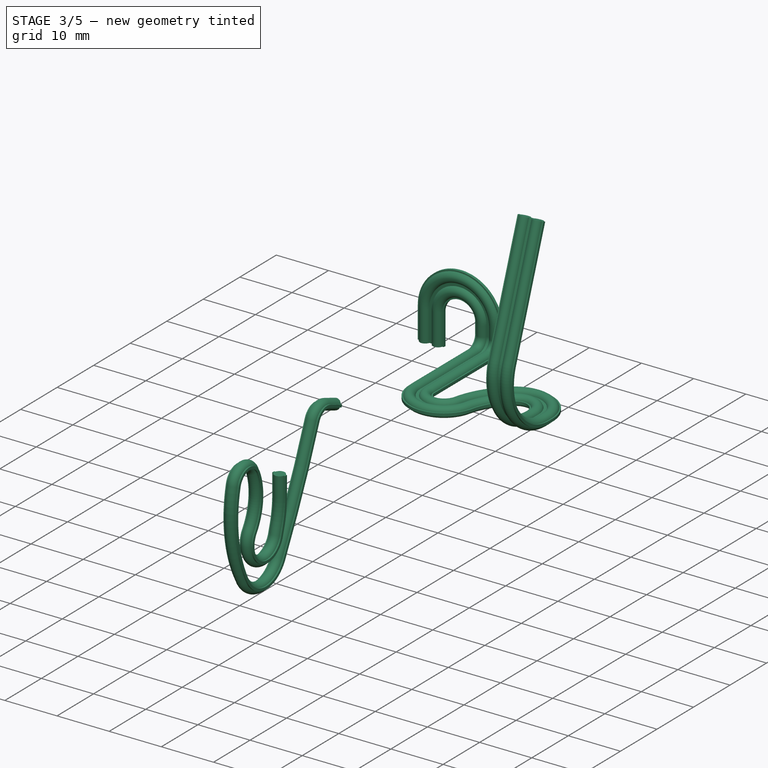
[diagram: stage 3 of 5 — iso view after this stage's code; geometry added in this stage tinted green]
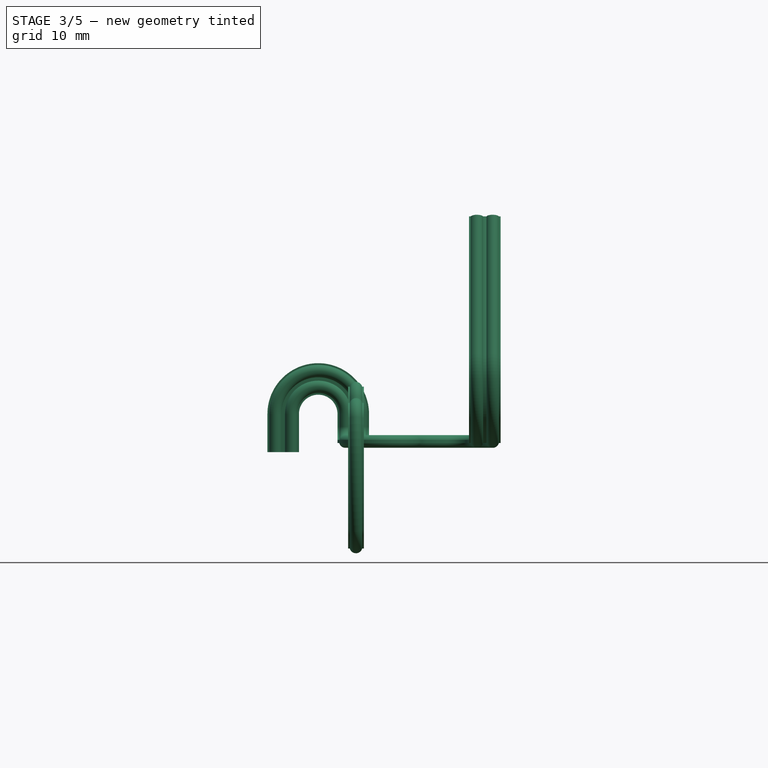
[diagram: stage 3 of 5 — front view after this stage's code; geometry added in this stage tinted green]
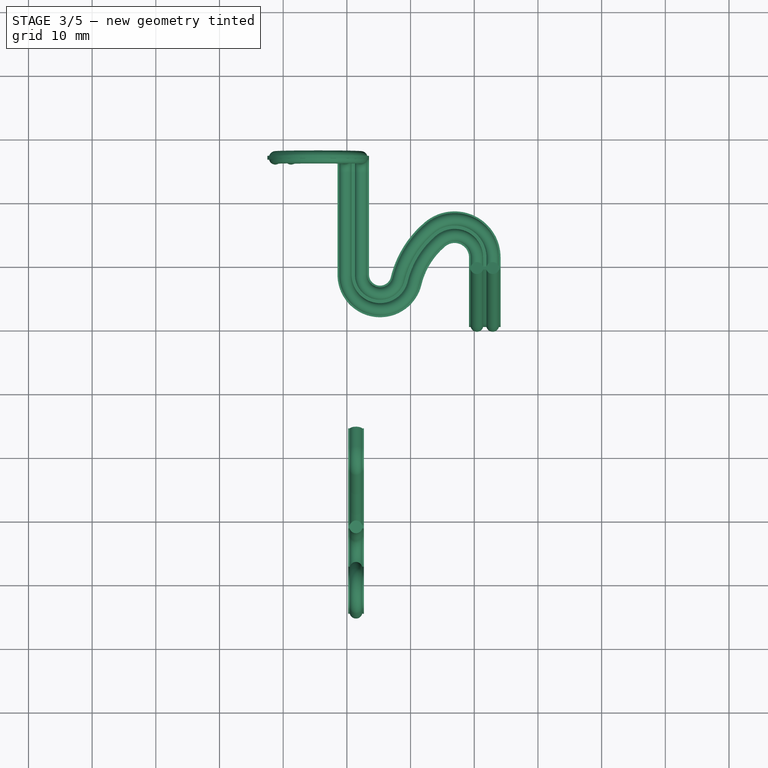
[diagram: stage 3 of 5 — top view after this stage's code; geometry added in this stage tinted green]
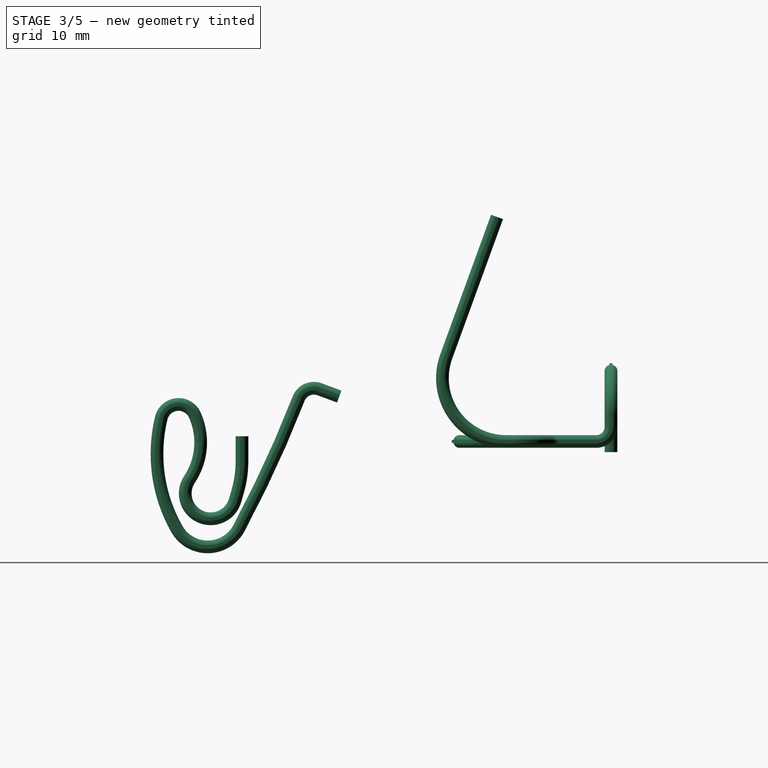
[diagram: stage 3 of 5 — right view after this stage's code; geometry added in this stage tinted green]
FEATURE [PartDesign::Body] Body002
  AllowCompound = false
  BaseFeature = -> Body
  Group = -> [Clone001]
  Origin = -> Origin044
  Placement = pos=(-5.08,0,0) rot=(0,0,1;0rad)
  Tip = -> Clone001
FEATURE [PartDesign::FeatureBase] Clone002
  BaseFeature = -> Body
  Suppressed = false
FEATURE [PartDesign::Body] Body003
  AllowCompound = false
  BaseFeature = -> Body
  Group = -> [Clone002]
  Origin = -> Origin045
  Placement = pos=(-7.62,0,0) rot=(0,0,1;0rad)
  Tip = -> Clone002
FEATURE [PartDesign::FeatureBase] Clone003
  BaseFeature = -> Body
  Suppressed = false
FEATURE [PartDesign::Body] Body004
  AllowCompound = false
  BaseFeature = -> Body
  Group = -> [Clone003]
  Origin = -> Origin046
  Placement = pos=(-10.16,0,0) rot=(0,0,1;0rad)
  Tip = -> Clone003
FEATURE [PartDesign::FeatureBase] Clone004
  BaseFeature = -> Body
  Suppressed = false
FEATURE [PartDesign::Body] Body005
  AllowCompound = false
  BaseFeature = -> Body
  Group = -> [Clone004]
  Origin = -> Origin047
  Placement = pos=(-12.7,0,0) rot=(0,0,1;0rad)
  Tip = -> Clone004
FEATURE [PartDesign::FeatureBase] Clone005
  BaseFeature = -> Body
  Suppressed = false
FEATURE [PartDesign::Body] Body006
  AllowCompound = false
  BaseFeature = -> Body
  Group = -> [Clone005]
  Origin = -> Origin048
  Placement = pos=(-15.24,0,0) rot=(0,0,1;0rad)
  Tip = -> Clone005
FEATURE [PartDesign::FeatureBase] Clone006
  BaseFeature = -> Body
  Suppressed = false
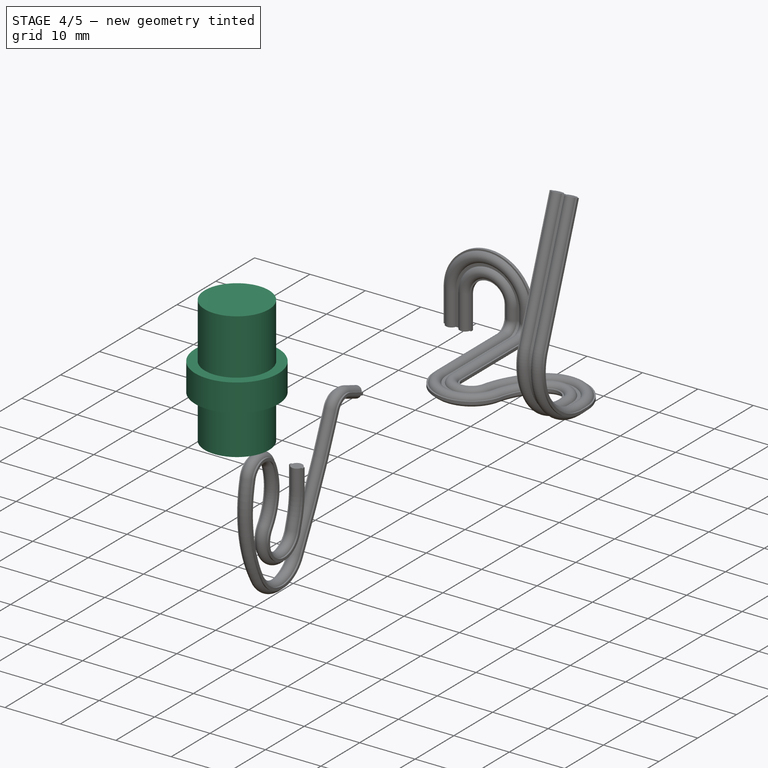
[diagram: stage 4 of 5 — iso view after this stage's code; geometry added in this stage tinted green]
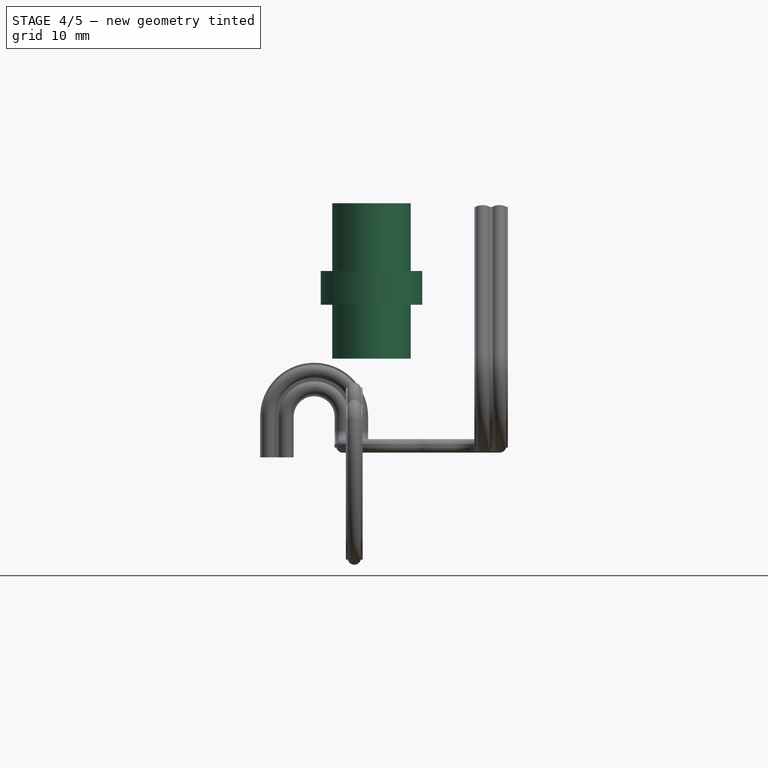
[diagram: stage 4 of 5 — front view after this stage's code; geometry added in this stage tinted green]
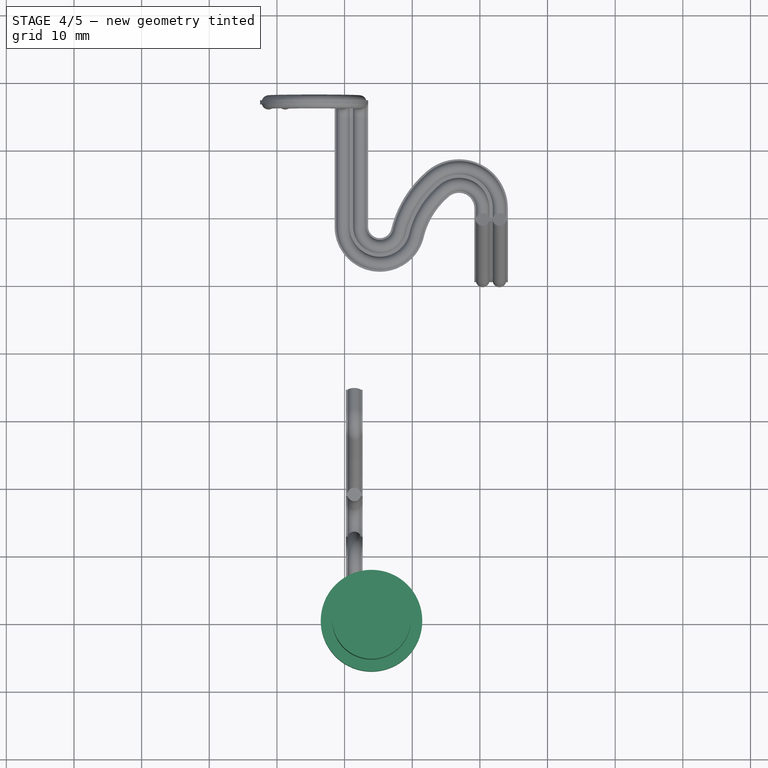
[diagram: stage 4 of 5 — top view after this stage's code; geometry added in this stage tinted green]
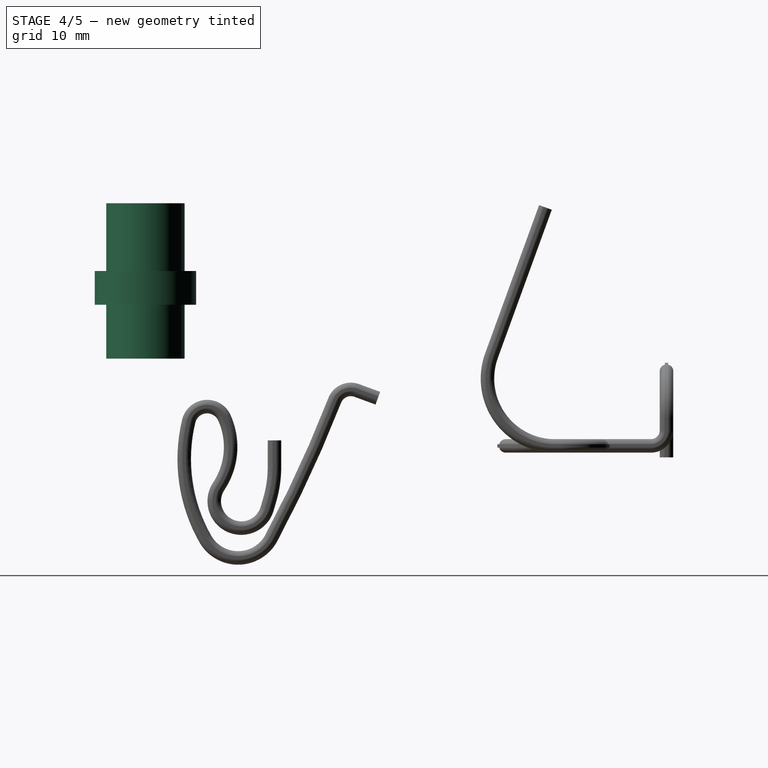
[diagram: stage 4 of 5 — right view after this stage's code; geometry added in this stage tinted green]
FEATURE [PartDesign::Body] Body  label="Cable_flat_10x"
  AllowCompound = false
  Group = -> [DatumPlane,Sketch001,Sketch002,AdditivePipe]
  Origin = -> Origin042
  Tip = -> AdditivePipe
FEATURE [PartDesign::FeatureBase] Clone
  BaseFeature = -> Body
  Suppressed = false
FEATURE [PartDesign::Body] Body001
  AllowCompound = false
  BaseFeature = -> Body
  Group = -> [Clone]
  Origin = -> Origin043
  Placement = pos=(-2.54,0,0) rot=(0,0,1;0rad)
  Tip = -> Clone
FEATURE [PartDesign::FeatureBase] Clone001
  BaseFeature = -> Body
  Suppressed = false
FEATURE [PartDesign::Body] Body011  label="Bat-"
  AllowCompound = false
  Group = -> [Binder003,Binder004,Binder005,Sketch008,DatumPlane005,Sketch009,DatumPlane006,Sketch010,DatumPlane007,Sketch011,DatumPlane008,Sketch012,Sketch013,AdditivePipe005,AdditivePipe006,AdditivePipe007,AdditivePipe008]
  Origin = -> Origin054
  Tip = -> AdditivePipe008
FEATURE [PartDesign::SubShapeBinder] Binder055
  BindCopyOnChange = 0
  BindMode = 0
  ClaimChildren = false
  Context = -> Body021 [Binder055.]
  Fuse = false
  MakeFace = true
  OffsetFill = false
  OffsetIntersection = false
  OffsetJoinType = 0
  OffsetOpenResult = false
  PartialLoad = false
  Refine = true
  Relative = true
  _Version = 2
FEATURE [PartDesign::SubShapeBinder] Binder056
  BindCopyOnChange = 0
  BindMode = 0
  ClaimChildren = false
  Context = -> Body021 [Binder056.]
  Fuse = false
  MakeFace = true
  OffsetFill = false
  OffsetIntersection = false
  OffsetJoinType = 0
  OffsetOpenResult = false
  PartialLoad = false
  Refine = true
  Relative = true
  _Version = 2
FEATURE [PartDesign::SubShapeBinder] Binder057
  BindCopyOnChange = 0
  BindMode = 0
  ClaimChildren = false
  Context = -> Body021 [Binder057.]
  Fuse = false
  MakeFace = true
  OffsetFill = false
  OffsetIntersection = false
  OffsetJoinType = 0
  OffsetOpenResult = false
  PartialLoad = false
  Refine = true
  Relative = true
  _Version = 2
FEATURE [PartDesign::Plane] DatumPlane009
  AttachmentOffset = pos=(0,0,0) rot=(1,0,0;1.5708rad)
  Length = 60
  MapMode = 7
  Placement = pos=(19.78,-50.184,8.345) rot=(0,0.707107,-0.707107;3.14159rad)
  ResizeMode = 0
  Width = 60
FEATURE [PartDesign::Plane] DatumPlane010
  Length = 60
  MapMode = 7
  Placement = pos=(13.98,-50.184,18.345) rot=(1,0,0;1.5708rad)
  ResizeMode = 0
  Width = 60
FEATURE [Sketcher::SketchObject] Sketch055
  ArcFitTolerance = 1e-06
  ExternalGeometry = -> [Binder055]
  FullyConstrained = true
  MakeInternals = false
  MapMode = 5
  Placement = pos=(0,0,3.145) rot=(0,0,1;0rad)
  sketch-geometry (4):
    g0: ArcOfCircle CenterX=13.98 CenterY=-50.184 CenterZ=0 NormalX=0 NormalY=0 NormalZ=1 AngleXU=0 Radius=3.2 StartAngle=2.27616 EndAngle=7.14862
    g1: LineSegment StartX=11.9054 StartY=-47.7476 StartZ=0 EndX=16.0546 EndY=-47.7476 EndZ=0
    g2: Circle CenterX=13.98 CenterY=-50.184 CenterZ=0 NormalX=0 NormalY=0 NormalZ=1 AngleXU=0 Radius=5.8
    g3: Circle [constr] CenterX=13.98 CenterY=-50.184 CenterZ=0 NormalX=0 NormalY=0 NormalZ=1 AngleXU=0 Radius=5.1
  constraints (10):
    c: Coincident(g0,g-3)
    c: Coincident(g1,g0)
    c: Coincident(g1,g0)
    c: Horizontal(g1)
    c: Diameter(g0) = 6.4
    c: Diameter(g2) = 11.6
    c: Coincident(g2,g0)
    c: Diameter(g3) = 10.2
    c: Coincident(g3,g0)
    c: PointOnObject(g-8,g1)
FEATURE [PartDesign::Pad] Pad036
  Direction = (0,0,1)
  Length = 1.75
  Length2 = 0.2
  Placement = pos=(0,0,3.145) rot=(0,0,1;0rad)
  Profile = -> Sketch055
  ReferenceAxis = -> Sketch055 [N_Axis]
  Refine = true
  Reversed = true
  Suppressed = false
  Type = 0
FEATURE [Sketcher::SketchObject] Sketch056
  ArcFitTolerance = 1e-06
  ExternalGeometry = -> [Pad036]
  FullyConstrained = true
  MakeInternals = false
  MapMode = 5
  Placement = pos=(0,0,1.395) rot=(1,0,0;3.14159rad)
  sketch-geometry (2):
    g0: Circle CenterX=13.98 CenterY=50.184 CenterZ=0 NormalX=0 NormalY=0 NormalZ=1 AngleXU=0 Radius=5.8
    g1: Circle CenterX=13.98 CenterY=50.184 CenterZ=0 NormalX=0 NormalY=0 NormalZ=1 AngleXU=0 Radius=5.1
  constraints (4):
    c: Coincident(g0,g-3)
    c: Equal(g0,g-3)
    c: Diameter(g1) = 10.2
    c: Coincident(g1,g0)
FEATURE [PartDesign::Pad] Pad037
  BaseFeature = -> Pad036
  Direction = (0,-1e-16,-1)
  Length = 6
  Length2 = 10
  Placement = pos=(0,0,3.145) rot=(0,0,1;0rad)
  Profile = -> Sketch056
  ReferenceAxis = -> Sketch056 [N_Axis]
  Refine = true
  Suppressed = false
  Type = 0
FEATURE [Sketcher::SketchObject] Sketch057
  ArcFitTolerance = 1e-06
  FullyConstrained = true
  MakeInternals = false
  MapMode = 5
  Placement = pos=(0,0,3.345) rot=(0,0,1;0rad)
  sketch-geometry (1):
    g0: Circle CenterX=13.98 CenterY=-50.184 CenterZ=0 NormalX=0 NormalY=0 NormalZ=1 AngleXU=0 Radius=7.5
  constraints (2):
    c: Diameter(g0) = 15
    c: Coincident(g0,g-3)
FEATURE [PartDesign::Pad] Pad038
  BaseFeature = -> Pad037
  Direction = (0,0,1)
  Length = 5
  Length2 = 10
  Placement = pos=(0,0,3.145) rot=(0,0,1;0rad)
  Profile = -> Sketch057
  ReferenceAxis = -> Sketch057 [N_Axis]
  Refine = true
  Suppressed = false
  Type = 0
FEATURE [Sketcher::SketchObject] Sketch060
  ArcFitTolerance = 1e-06
  FullyConstrained = true
  MakeInternals = false
  MapMode = 5
  Placement = pos=(0,0,8.345) rot=(0,0,1;0rad)
  sketch-geometry (1):
    g0: Circle CenterX=13.98 CenterY=-50.184 CenterZ=0 NormalX=0 NormalY=0 NormalZ=1 AngleXU=0 Radius=5.8
  constraints (2):
    c: Coincident(g0,g-3)
    c: Equal(g0,g-3)
FEATURE [PartDesign::Pad] Pad039
  BaseFeature = -> Pad038
  Direction = (0,0,1)
  Length = 10
  Length2 = 10
  Placement = pos=(0,0,3.145) rot=(0,0,1;0rad)
  Profile = -> Sketch060
  ReferenceAxis = -> Sketch060 [N_Axis]
  Refine = true
  Suppressed = false
  Type = 0
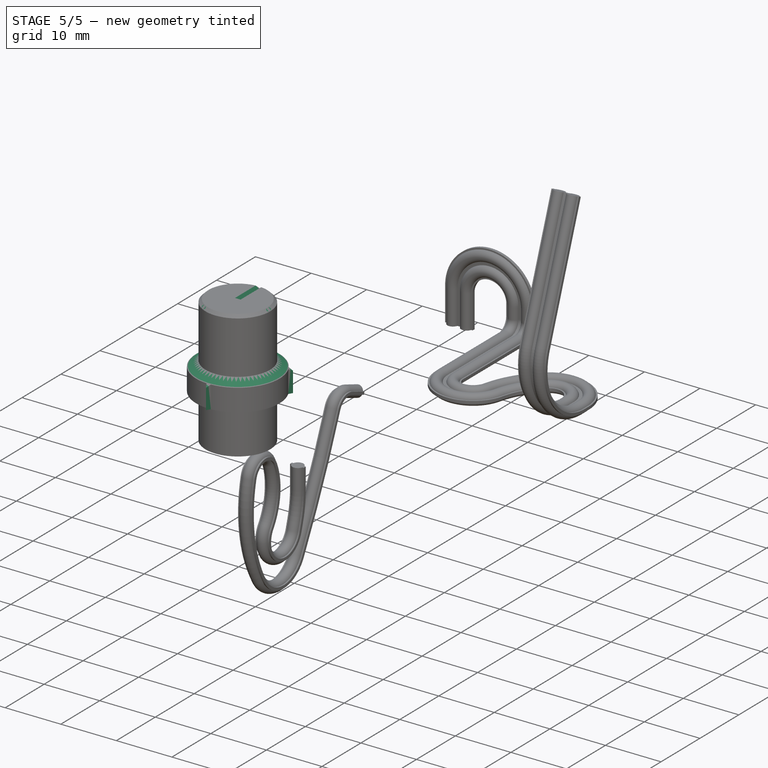
[diagram: stage 5 of 5 — iso view after this stage's code; geometry added in this stage tinted green]
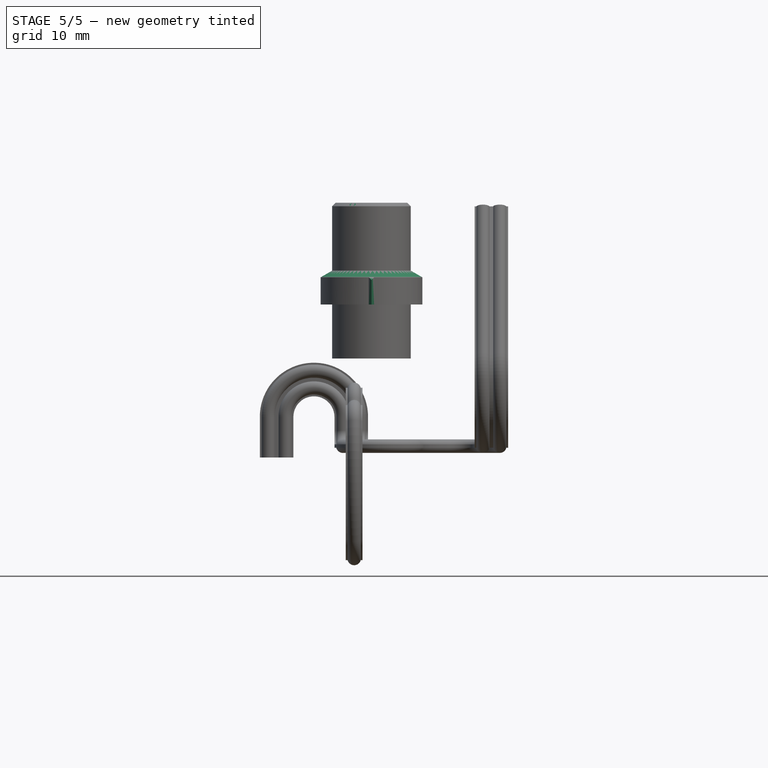
[diagram: stage 5 of 5 — front view after this stage's code; geometry added in this stage tinted green]
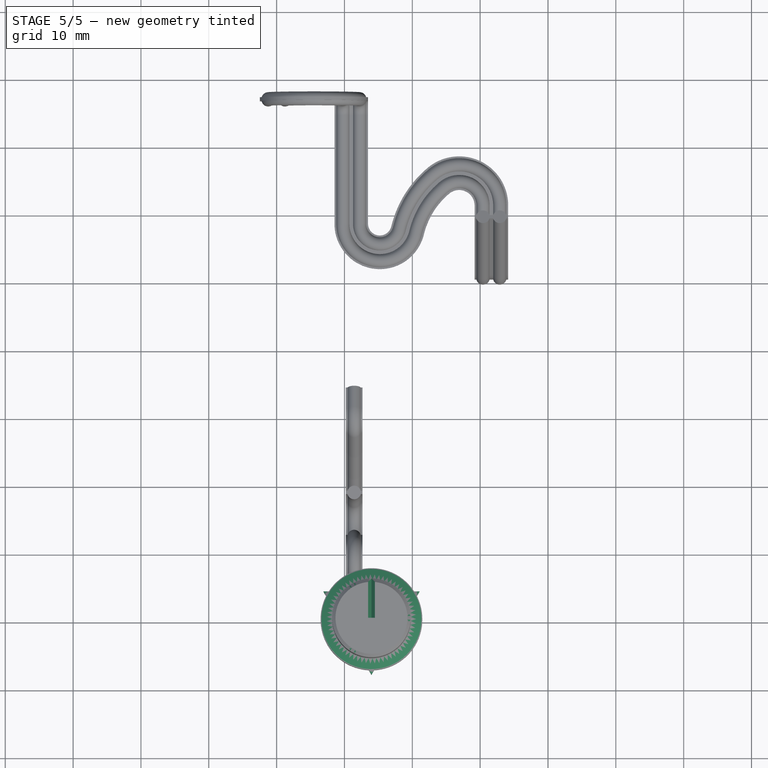
[diagram: stage 5 of 5 — top view after this stage's code; geometry added in this stage tinted green]
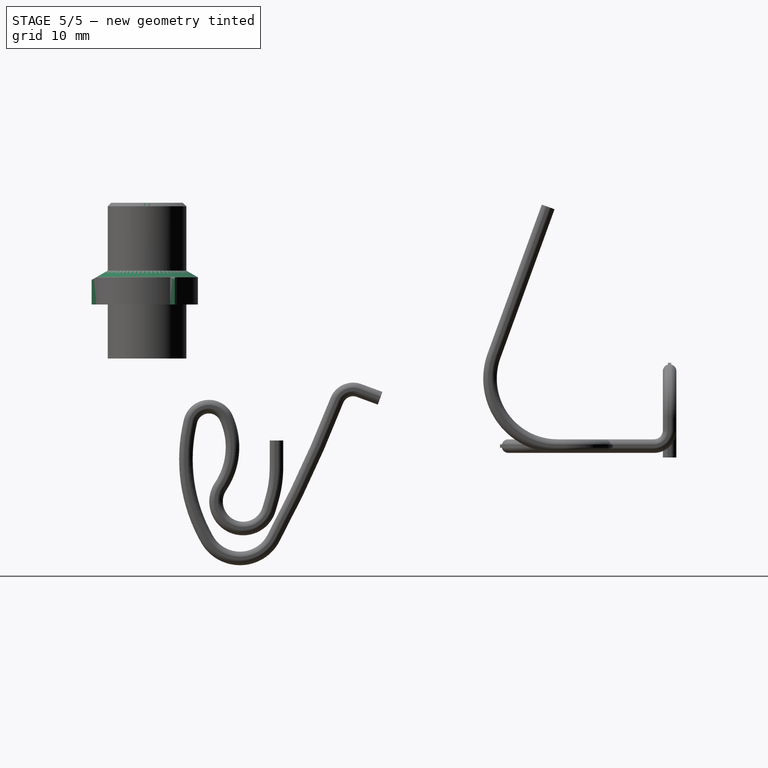
[diagram: stage 5 of 5 — right view after this stage's code; geometry added in this stage tinted green]
FEATURE [Sketcher::SketchObject] Sketch059
  ArcFitTolerance = 1e-06
  ExternalGeometry = -> [Pad039]
  FullyConstrained = true
  MakeInternals = false
  MapMode = 5
  Placement = pos=(0,0,8.345) rot=(0,0,1;0rad)
  sketch-geometry (6):
    g0: LineSegment [constr] StartX=13.98 StartY=-50.184 StartZ=0 EndX=13.98 EndY=-57.6737 EndZ=0
    g1: LineSegment StartX=13.5875 StartY=-57.6737 StartZ=0 EndX=14.3725 EndY=-57.6737 EndZ=0
    g2: LineSegment StartX=14.3725 StartY=-57.6737 StartZ=0 EndX=13.98 EndY=-58.3536 EndZ=0
    g3: LineSegment StartX=13.98 StartY=-58.3536 StartZ=0 EndX=13.5875 EndY=-57.6737 EndZ=0
    g4: LineSegment [constr] StartX=13.5875 StartY=-57.6737 StartZ=0 EndX=13.98 EndY=-50.184 EndZ=0
    g5: LineSegment [constr] StartX=13.98 StartY=-50.184 StartZ=0 EndX=14.3725 EndY=-57.6737 EndZ=0
  constraints (15):
    c: Coincident(g1,g2)
    c: Coincident(g2,g3)
    c: Coincident(g3,g1)
    c: Equal(g1,g2)
    c: Equal(g2,g3)
    c: Symmetric(g1,g1,g0)
    c: Coincident(g4,g1)
    c: Coincident(g4,g0)
    c: Coincident(g5,g0)
    c: Coincident(g5,g1)
    c: Angle(g4,g5) = 0.10472
    c: PointOnObject(g0,g1)
    c: Coincident(g-3,g0)
    c: Vertical(g0)
    c: PointOnObject(g1,g-3)
FEATURE [PartDesign::Pad] Pad040
  BaseFeature = -> Pad039
  Direction = (0,0,1)
  Length = 10
  Length2 = 10
  Placement = pos=(0,0,3.145) rot=(0,0,1;0rad)
  Profile = -> Sketch059
  ReferenceAxis = -> Sketch059 [N_Axis]
  Refine = true
  Reversed = true
  Suppressed = false
  Type = 3
  UpToFace = -> Pad039 [Face4]
FEATURE [PartDesign::PolarPattern] PolarPattern001
  Angle = 360
  BaseFeature = -> Pad040
  Mode = 0
  Occurrences = 60
  Offset = 120
  Originals = -> [Pad040]
  Placement = pos=(0,0,3.145) rot=(0,0,1;0rad)
  Refine = true
  Suppressed = false
  TransformMode = 0
FEATURE [Sketcher::SketchObject] Sketch061
  ArcFitTolerance = 1e-06
  FullyConstrained = true
  MakeInternals = false
  MapMode = 5
  Placement = pos=(19.78,-50.184,8.345) rot=(0,0.707107,-0.707107;3.14159rad)
  sketch-geometry (3):
    g0: LineSegment StartX=0 StartY=0 StartZ=0 EndX=-4.2 EndY=2.42487 EndZ=0
    g1: LineSegment StartX=-4.2 StartY=2.42487 StartZ=0 EndX=-4.2 EndY=0 EndZ=0
    g2: LineSegment StartX=-4.2 StartY=0 StartZ=0 EndX=0 EndY=0 EndZ=0
  constraints (8):
    c: Coincident(g0,g1)
    c: Vertical(g1)
    c: Coincident(g1,g2)
    c: Angle(g0,g-1) = 0.523599
    c: Coincident(g0,g2)
    c: Coincident(g0,g-4)
    c: PointOnObject(g1,g-1)
    c: DistanceX(g1,g0) = 4.2
FEATURE [Sketcher::SketchObject] Sketch062
  ArcFitTolerance = 1e-06
  FullyConstrained = true
  MakeInternals = false
  MapMode = 5
  Placement = pos=(0,0,18.345) rot=(0,0,1;0rad)
  sketch-geometry (1):
    g0: LineSegment StartX=13.98 StartY=-50.184 StartZ=0 EndX=13.98 EndY=-43.784 EndZ=0
  constraints (3):
    c: Coincident(g0,g-3)
    c: Vertical(g0)
    c: DistanceY(g0,g0) = 6.4
FEATURE [Sketcher::SketchObject] Sketch063
  ArcFitTolerance = 1e-06
  FullyConstrained = true
  MakeInternals = false
  MapMode = 5
  Placement = pos=(13.98,-50.184,18.345) rot=(1,0,0;1.5708rad)
  sketch-geometry (4):
    g0: LineSegment StartX=0 StartY=-0.866025 StartZ=0 EndX=0.5 EndY=0 EndZ=0
    g1: LineSegment StartX=0.5 StartY=0 StartZ=0 EndX=-0.5 EndY=0 EndZ=0
    g2: LineSegment StartX=-0.5 StartY=0 StartZ=0 EndX=0 EndY=-0.866025 EndZ=0
    g3: Circle [constr] CenterX=-4.39e-14 CenterY=-0.288675 CenterZ=0 NormalX=0 NormalY=0 NormalZ=1 AngleXU=0 Radius=0.57735
  constraints (12):
    c: Coincident(g0,g1)
    c: Coincident(g1,g2)
    c: Coincident(g2,g0)
    c: Equal(g0,g1)
    c: Equal(g0,g2)
    c: PointOnObject(g0,g3)
    c: PointOnObject(g1,g3)
    c: PointOnObject(g2,g3)
    c: PointOnObject(g0,g-2)
    c: Horizontal(g1)
    c: PointOnObject(g1,g-3)
    c: DistanceX(g1,g1) = 1
FEATURE [Part::Feature] Part__Feature003  label="hc-sr04"
  Placement = pos=(0,-54.3,-24.1) rot=(0,0,1;3.14159rad)
  shape: bbox 45.2 x 18.55 x 25.81 mm, 1464 faces (baked)
FEATURE [App::DocumentObjectGroup] Group004  label="Cables"
  Group = -> [Part__Feature956,Part__Feature957,Group003,Solid,Body010,Body011]
FEATURE [Part::Feature] Part__Feature  label="SW_CuK_OS102011MA1QN1_SPDT_Angled"
  Placement = pos=(27.7,-13.2,1.595) rot=(0,0,1;1.5708rad)
  shape: bbox 8.4 x 8.6 x 7.6 mm, 200 faces (baked)
FEATURE [Part::Feature] Part__Feature958  label="PinHeader_1x04_P2.54mm_Vertical"
  Placement = pos=(-32.8,-0.72,1.595) rot=(0,0,1;1.5708rad)
  shape: bbox 10.16 x 2.54 x 11.54 mm, 100 faces (baked)
FEATURE [Part::Feature] Part__Feature959  label="R_Axial_DIN0207_L6.3mm_D2.5mm_P7.62mm_Horizontal"
  Placement = pos=(8,8.15,1.595) rot=(0,0,1;0rad)
  shape: bbox 8.418 x 2.706 x 5.603 mm, 15 faces (baked)
FEATURE [Part::Feature] Part__Feature960  label="D_DO-41_SOD81_P10.16mm_Horizontal"
  Placement = pos=(27.4,-3.78,1.595) rot=(0,0,1;1.5708rad)
  shape: bbox 2.72 x 11.16 x 5.71 mm, 15 faces (baked)
FEATURE [Part::Feature] Part__Feature961  label="PinHeader_1x10_P2.54mm_Vertical"
  Placement = pos=(11.425,-30,1.595) rot=(0,0,-1;1.5708rad)
  shape: bbox 25.4 x 2.54 x 11.54 mm, 244 faces (baked)
FEATURE [Part::Feature] Part__Feature962  label="PinHeader_1x03_P2.54mm_Vertical"
  Placement = pos=(-18.54,-24.92,1.595) rot=(0,0,1;0rad)
  shape: bbox 2.54 x 7.62 x 11.54 mm, 76 faces (baked)
FEATURE [Part::Feature] Part__Feature963  label="R_Axial_DIN0207_L6.3mm_D2.5mm_P7.62mm_Horizontal001"
  Placement = pos=(-7.98,10.69,1.595) rot=(0,0,1;3.14159rad)
  shape: bbox 8.418 x 2.706 x 5.603 mm, 15 faces (baked)
FEATURE [Part::Feature] Part__Feature964  label="R_Axial_DIN0207_L6.3mm_D2.5mm_P7.62mm_Horizontal002"
  Placement = pos=(-32.8,-5.8,1.595) rot=(0,0,1;0rad)
  shape: bbox 8.418 x 2.706 x 5.603 mm, 15 faces (baked)
FEATURE [Part::Feature] Part__Feature965  label="PinSocket_1x15_P2.54mm_Vertical"
  Placement = pos=(19.812,-3.81,1.595) rot=(0,0,-1;1.5708rad)
  shape: bbox 38.1 x 2.54 x 11.6 mm, 400 faces (baked)
FEATURE [Part::Feature] Part__Feature966  label="arduino_nano"
  Placement = pos=(-18.288,-11.43,10.231) rot=(0,0,1;1.5708rad)
  shape: bbox 45 x 18 x 18.6 mm, 4993 faces (baked)
FEATURE [Part::Feature] Part__Feature967  label="arduino_nano001"
  Placement = pos=(-18.288,-11.43,10.231) rot=(0,0,1;1.5708rad)
  shape: bbox 11.25 x 11.25 x 1.2 mm, 1867 faces (baked)
FEATURE [App::Part] arduino_nano  label="arduino_nano002"
  Group = -> [Part__Feature966,Part__Feature967]
  Origin = -> Origin133
FEATURE [Part::Feature] Part__Feature968  label="R_Axial_DIN0207_L6.3mm_D2.5mm_P7.62mm_Horizontal003"
  Placement = pos=(8,15.77,1.595) rot=(0,0,1;0rad)
  shape: bbox 8.418 x 2.706 x 5.603 mm, 15 faces (baked)
FEATURE [Part::Feature] Part__Feature969  label="PinHeader_1x03_P2.54mm_Vertical001"
  Placement = pos=(-16,-24.92,1.595) rot=(0,0,1;0rad)
  shape: bbox 2.54 x 7.62 x 11.54 mm, 76 faces (baked)
FEATURE [Part::Feature] Part__Feature970  label="PinHeader_1x03_P2.54mm_Vertical002"
  Placement = pos=(-23.62,-24.92,1.595) rot=(0,0,1;0rad)
  shape: bbox 2.54 x 7.62 x 11.54 mm, 76 faces (baked)
FEATURE [Part::Feature] Part__Feature971  label="PinHeader_1x03_P2.54mm_Vertical003"
  Placement = pos=(16,-24.92,1.595) rot=(0,0,1;0rad)
  shape: bbox 2.54 x 7.62 x 11.54 mm, 76 faces (baked)
FEATURE [Part::Feature] Part__Feature972  label="PinHeader_1x03_P2.54mm_Vertical004"
  Placement = pos=(-25.19,-10.6,1.595) rot=(0,0,1;0rad)
  shape: bbox 2.54 x 7.62 x 11.54 mm, 76 faces (baked)
FEATURE [Part::Feature] Part__Feature973  label="Display_OLED-1_3-128X64"
  Placement = pos=(0,14.232,10.595) rot=(0,0,1;0rad)
  shape: bbox 22 x 7.55 x 2.35 mm, 18 faces (baked)
FEATURE [Part::Feature] Part__Feature974  label="Display_OLED-1_3-128X065"
  Placement = pos=(0,14.232,10.595) rot=(0,0,1;0rad)
  shape: bbox 35.65 x 33.6 x 2.6 mm, 215 faces (baked)
FEATURE [Part::Feature] Part__Feature975  label="Display_OLED-1_3-128X066"
  Placement = pos=(0,14.232,10.595) rot=(0,0,1;0rad)
  shape: bbox 10.16 x 2.55 x 11.8 mm, 156 faces (baked)
FEATURE [App::Part] Display_OLED_1_3_128X64  label="Display_OLED-1_3-128X067"
  Group = -> [Part__Feature973,Part__Feature974,Part__Feature975]
  Origin = -> Origin134
FEATURE [Part::Feature] Part__Feature976  label="PinSocket_1x04_P2.54mm_Vertical"
  Placement = pos=(-3.81,29.632,1.595) rot=(0,0,1;1.5708rad)
  shape: bbox 10.16 x 2.54 x 11.6 mm, 114 faces (baked)
FEATURE [Part::Feature] Part__Feature977  label="PinSocket_1x15_P2.54mm_Vertical001"
  Placement = pos=(19.812,-19.05,1.595) rot=(0,0,-1;1.5708rad)
  shape: bbox 38.1 x 2.54 x 11.6 mm, 400 faces (baked)
FEATURE [Part::Feature] Part__Feature978  label="R_Axial_DIN0207_L6.3mm_D2.5mm_P7.62mm_Horizontal004"
  Placement = pos=(-7.98,15.77,1.595) rot=(0,0,1;3.14159rad)
  shape: bbox 8.418 x 2.706 x 5.603 mm, 15 faces (baked)
FEATURE [Part::Feature] Part__Feature979  label="R_Axial_DIN0207_L6.3mm_D2.5mm_P7.62mm_Horizontal005"
  Placement = pos=(-7.98,18.31,1.595) rot=(0,0,1;3.14159rad)
  shape: bbox 8.418 x 2.706 x 5.603 mm, 15 faces (baked)
FEATURE [Part::Feature] Part__Feature980  label="PinHeader_1x03_P2.54mm_Vertical005"
  Placement = pos=(-32.81,-10.6,1.595) rot=(0,0,1;0rad)
  shape: bbox 2.54 x 7.62 x 11.54 mm, 76 faces (baked)
FEATURE [Part::Feature] Part__Feature981  label="R_Axial_DIN0207_L6.3mm_D2.5mm_P7.62mm_Horizontal006"
  Placement = pos=(8,13.23,1.595) rot=(0,0,1;0rad)
  shape: bbox 8.418 x 2.706 x 5.603 mm, 15 faces (baked)
FEATURE [Part::Feature] Part__Feature982  label="PinHeader_1x03_P2.54mm_Vertical006"
  Placement = pos=(-30.27,-10.6,1.595) rot=(0,0,1;0rad)
  shape: bbox 2.54 x 7.62 x 11.54 mm, 76 faces (baked)
FEATURE [Part::Feature] Part__Feature983  label="R_Axial_DIN0207_L6.3mm_D2.5mm_P7.62mm_Horizontal007"
  Placement = pos=(8,18.31,1.595) rot=(0,0,1;0rad)
  shape: bbox 8.418 x 2.706 x 5.603 mm, 15 faces (baked)
FEATURE [Part::Feature] Part__Feature984  label="R_Axial_DIN0207_L6.3mm_D2.5mm_P7.62mm_Horizontal008"
  Placement = pos=(-7.98,13.23,1.595) rot=(0,0,1;3.14159rad)
  shape: bbox 8.418 x 2.706 x 5.603 mm, 15 faces (baked)
FEATURE [Part::Feature] Part__Feature985  label="R_Axial_DIN0207_L6.3mm_D2.5mm_P7.62mm_Horizontal009"
  Placement = pos=(-7.98,8.15,1.595) rot=(0,0,1;3.14159rad)
  shape: bbox 8.418 x 2.706 x 5.603 mm, 15 faces (baked)
FEATURE [Part::Feature] Part__Feature986  label="PinHeader_1x03_P2.54mm_Vertical007"
  Placement = pos=(18.54,-24.92,1.595) rot=(0,0,1;0rad)
  shape: bbox 2.54 x 7.62 x 11.54 mm, 76 faces (baked)
FEATURE [Part::Feature] Part__Feature987  label="R_Axial_DIN0207_L6.3mm_D2.5mm_P7.62mm_Horizontal010"
  Placement = pos=(-32.8,1.82,1.595) rot=(0,0,1;0rad)
  shape: bbox 8.418 x 2.706 x 5.603 mm, 15 faces (baked)
FEATURE [Part::Feature] Part__Feature988  label="PinHeader_1x03_P2.54mm_Vertical008"
  Placement = pos=(-21.08,-24.92,1.595) rot=(0,0,1;0rad)
  shape: bbox 2.54 x 7.62 x 11.54 mm, 76 faces (baked)
FEATURE [Part::Feature] Part__Feature989  label="R_Axial_DIN0207_L6.3mm_D2.5mm_P7.62mm_Horizontal011"
  Placement = pos=(8,10.69,1.595) rot=(0,0,1;0rad)
  shape: bbox 8.418 x 2.706 x 5.603 mm, 15 faces (baked)
FEATURE [Part::Feature] Part__Feature990  label="PinHeader_1x03_P2.54mm_Vertical009"
  Placement = pos=(21.08,-24.92,1.595) rot=(0,0,1;0rad)
  shape: bbox 2.54 x 7.62 x 11.54 mm, 76 faces (baked)
FEATURE [Part::Feature] Part__Feature991  label="PinHeader_1x03_P2.54mm_Vertical010"
  Placement = pos=(-27.73,-10.6,1.595) rot=(0,0,1;0rad)
  shape: bbox 2.54 x 7.62 x 11.54 mm, 76 faces (baked)
FEATURE [Part::Feature] Part__Feature992  label="PinHeader_1x04_P2.54mm_Vertical001"
  Placement = pos=(-32.8,-3.26,1.595) rot=(0,0,1;1.5708rad)
  shape: bbox 10.16 x 2.54 x 11.54 mm, 100 faces (baked)
FEATURE [Part::Feature] Part__Feature993  label="PinHeader_1x03_P2.54mm_Vertical011"
  Placement = pos=(23.62,-24.92,1.595) rot=(0,0,1;0rad)
  shape: bbox 2.54 x 7.62 x 11.54 mm, 76 faces (baked)
FEATURE [Part::Feature] Part__Feature994  label="PinSocket_1x03_P2.54mm_Horizontal_haptic"
  Placement = pos=(2.54,13.3,-0.085) rot=(0.707107,0.707107,0;3.14159rad)
  shape: bbox 7.62 x 10.13 x 5.84 mm, 100 faces (baked)
FEATURE [Part::Feature] Part__Feature995  label="PinSocket_1x03_P2.54mm_Horizontal_haptic001"
  Placement = pos=(2.54,13.3,-0.085) rot=(0.707107,0.707107,0;3.14159rad)
  shape: bbox 21.2 x 23.2 x 1.65 mm, 147 faces (baked)
FEATURE [Part::Feature] Part__Feature996  label="PinSocket_1x03_P2.54mm_Horizontal_haptic002"
  Placement = pos=(2.54,13.3,-0.085) rot=(0.707107,0.707107,0;3.14159rad)
  shape: bbox 2.4 x 2.4 x 2.4 mm, 10 faces (baked)
FEATURE [Part::Feature] Part__Feature997  label="PinSocket_1x03_P2.54mm_Horizontal_haptic003"
  Placement = pos=(2.54,13.3,-0.085) rot=(0.707107,0.707107,0;3.14159rad)
  shape: bbox 0.6 x 7.5 x 6.4 mm, 10 faces (baked)
FEATURE [Part::Feature] Part__Feature998  label="PinSocket_1x03_P2.54mm_Horizontal_haptic004"
  Placement = pos=(2.54,13.3,-0.085) rot=(0.707107,0.707107,0;3.14159rad)
  shape: bbox 2.4 x 2.4 x 2.4 mm, 10 faces (baked)
FEATURE [Part::Feature] Part__Feature999  label="PinSocket_1x03_P2.54mm_Horizontal_haptic005"
  Placement = pos=(2.54,13.3,-0.085) rot=(0.707107,0.707107,0;3.14159rad)
  shape: bbox 0.6 x 7.5 x 6.4 mm, 10 faces (baked)
FEATURE [Part::Feature] Part__Feature1000  label="PinSocket_1x03_P2.54mm_Horizontal_haptic006"
  Placement = pos=(2.54,13.3,-0.085) rot=(0.707107,0.707107,0;3.14159rad)
  shape: bbox 2.4 x 2.4 x 2.4 mm, 10 faces (baked)
FEATURE [Part::Feature] Part__Feature1001  label="PinSocket_1x03_P2.54mm_Horizontal_haptic007"
  Placement = pos=(2.54,13.3,-0.085) rot=(0.707107,0.707107,0;3.14159rad)
  shape: bbox 0.6 x 7.5 x 6.4 mm, 10 faces (baked)
FEATURE [Part::Feature] Part__Feature1002  label="PinSocket_1x03_P2.54mm_Horizontal_haptic008"
  Placement = pos=(2.54,13.3,-0.085) rot=(0.707107,0.707107,0;3.14159rad)
  shape: bbox 10 x 10 x 3.4 mm, 4 faces (baked)
FEATURE [App::Part] PinSocket_1x03_P2_54mm_Horizontal_haptic  label="PinSocket_1x03_P2.54mm_Horizontal_haptic009"
  Group = -> [Part__Feature994,Part__Feature995,Part__Feature996,Part__Feature997,Part__Feature998,Part__Feature999,Part__Feature1000,Part__Feature1001,Part__Feature1002]
  Origin = -> Origin135
FEATURE [Part::Feature] Part__Feature1003  label="PinHeader_1x02_P2.54mm_Horizontal"
  Placement = pos=(30.3,17.4,-0.085) rot=(0.707107,-0.707107,0;3.14159rad)
  shape: bbox 5.08 x 10.36 x 5.54 mm, 58 faces (baked)
FEATURE [Part::Feature] Part__Feature1004  label="TheThing_main_PCB"
  shape: bbox 80 x 64 x 1.51 mm, 290 faces (baked)
FEATURE [App::Part] TheThing_main_1  label="TheThing_main 1"
  Group = -> [Part__Feature,Part__Feature958,Part__Feature959,Part__Feature960,Part__Feature961,Part__Feature962,Part__Feature963,Part__Feature964,Part__Feature965,arduino_nano,Part__Feature968,Part__Feature969,Part__Feature970,Part__Feature971,Part__Feature972,Display_OLED_1_3_128X64,Part__Feature976,Part__Feature977,Part__Feature978,Part__Feature979,Part__Feature980,Part__Feature981,Part__Feature982,+14 more]
  Origin = -> Origin136
  Placement = pos=(0,5.8,13.8) rot=(1,0,0;1.22173rad)
FEATURE [Part::Feature] Part__Feature1005  label="R_Axial_DIN0207_L6.3mm_D2.5mm_P7.62mm_Horizontal012"
  Placement = pos=(-24.6,11.8,1.595) rot=(0,0,1;0rad)
  shape: bbox 8.418 x 2.706 x 5.603 mm, 15 faces (baked)
FEATURE [Part::Feature] Part__Feature1006  label="SW_TS14-1212-120-BK-160-SCR-D"
  Placement = pos=(29.54,4.1,1.595) rot=(0,0,-1;1.5708rad)
  shape: bbox 1 x 1 x 4.5 mm, 24 faces (baked)
FEATURE [Part::Feature] Part__Feature1007  label="SW_TS14-1212-120-BK-160-SCR-D001"
  Placement = pos=(29.54,4.1,1.595) rot=(0,0,-1;1.5708rad)
  shape: bbox 10.4 x 10.4 x 0.2 mm, 20 faces (baked)
FEATURE [Part::Feature] Part__Feature1008  label="SW_TS14-1212-120-BK-160-SCR-D002"
  Placement = pos=(29.54,4.1,1.595) rot=(0,0,-1;1.5708rad)
  shape: bbox 12 x 12 x 12 mm, 59 faces (baked)
FEATURE [Part::Feature] Part__Feature1009  label="SW_TS14-1212-120-BK-160-SCR-D003"
  Placement = pos=(29.54,4.1,1.595) rot=(0,0,-1;1.5708rad)
  shape: bbox 1 x 1 x 4.5 mm, 24 faces (baked)
FEATURE [Part::Feature] Part__Feature1010  label="SW_TS14-1212-120-BK-160-SCR-D004"
  Placement = pos=(29.54,4.1,1.595) rot=(0,0,-1;1.5708rad)
  shape: bbox 1 x 1 x 4.5 mm, 24 faces (baked)
FEATURE [Part::Feature] Part__Feature1011  label="SW_TS14-1212-120-BK-160-SCR-D005"
  Placement = pos=(29.54,4.1,1.595) rot=(0,0,-1;1.5708rad)
  shape: bbox 1 x 1 x 4.5 mm, 24 faces (baked)
FEATURE [App::Part] SW_TS14_1212_120_BK_160_SCR_D  label="SW_TS14-1212-120-BK-160-SCR-D006"
  Group = -> [Part__Feature1006,Part__Feature1007,Part__Feature1008,Part__Feature1009,Part__Feature1010,Part__Feature1011]
  Origin = -> Origin137
FEATURE [Part::Feature] Part__Feature1012  label="R_Axial_DIN0207_L6.3mm_D2.5mm_P7.62mm_Horizontal013"
  Placement = pos=(17,11.8,1.595) rot=(0,0,1;0rad)
  shape: bbox 8.418 x 2.706 x 5.603 mm, 15 faces (baked)
FEATURE [Part::Feature] Part__Feature1013  label="R_LDR_4.2x3.5mm_P2.54mm_Vertical"
  Placement = pos=(-17.018,-1.508,1.595) rot=(0,0,1;1.5708rad)
  shape: bbox 3.5 x 4.2 x 7 mm, 14 faces (baked)
FEATURE [Part::Feature] Part__Feature1014  label="R_LDR_4.2x3.5mm_P2.54mm_Vertical001"
  Placement = pos=(-17.018,-1.508,1.595) rot=(0,0,1;1.5708rad)
  shape: bbox 3.15 x 2.1 x 0.05 mm, 42 faces (baked)
FEATURE [App::Part] R_LDR_4_2x3_5mm_P2_54mm_Vertical  label="R_LDR_4.2x3.5mm_P2.54mm_Vertical002"
  Group = -> [Part__Feature1013,Part__Feature1014]
  Origin = -> Origin138
FEATURE [Part::Feature] Part__Feature1015  label="Trimpot_THT"
  Placement = pos=(14.22,-6.094,4.795) rot=(0,0,1;3.14159rad)
  shape: bbox 6.42 x 5.646 x 1.8 mm, 24 faces (baked)
FEATURE [Part::Feature] Part__Feature1016  label="Trimpot_THT001"
  Placement = pos=(14.22,-6.094,4.795) rot=(0,0,1;3.14159rad)
  shape: bbox 6.48 x 7.2 x 9.25 mm, 92 faces (baked)
FEATURE [App::Part] Trimpot_THT  label="Trimpot_THT002"
  Group = -> [Part__Feature1015,Part__Feature1016]
  Origin = -> Origin139
FEATURE [Part::Feature] Part__Feature1017  label="C_Disc_D3.0mm_W2.0mm_P2.50mm"
  Placement = pos=(-11.43,-2.25,1.595) rot=(0,0,1;1.5708rad)
  shape: bbox 2 x 3 x 5.1 mm, 12 faces (baked)
FEATURE [Part::Feature] Part__Feature1018  label="TO-92"
  Placement = pos=(12.68,2.03,1.595) rot=(0,0,1;0rad)
  shape: bbox 4.83 x 3.745 x 9.8 mm, 23 faces (baked)
FEATURE [Part::Feature] Part__Feature1019  label="D_DO-41_SOD81_P10.16mm_Horizontal001"
  Placement = pos=(-8.382,-6.08,1.595) rot=(0,0,1;1.5708rad)
  shape: bbox 2.72 x 11.16 x 5.71 mm, 15 faces (baked)
FEATURE [Part::Feature] Part__Feature1020  label="R_Axial_DIN0207_L6.3mm_D2.5mm_P7.62mm_Horizontal014"
  Placement = pos=(-17,8.3,1.595) rot=(0,0,1;3.14159rad)
  shape: bbox 8.418 x 2.706 x 5.603 mm, 15 faces (baked)
FEATURE [Part::Feature] Part__Feature1021  label="SW_TS14-1212-120-BK-160-SCR-D007"
  Placement = pos=(-29.54,-8.5,1.595) rot=(0,0,1;1.5708rad)
  shape: bbox 1 x 1 x 4.5 mm, 24 faces (baked)
FEATURE [Part::Feature] Part__Feature1022  label="SW_TS14-1212-120-BK-160-SCR-D008"
  Placement = pos=(-29.54,-8.5,1.595) rot=(0,0,1;1.5708rad)
  shape: bbox 10.4 x 10.4 x 0.2 mm, 20 faces (baked)
FEATURE [Part::Feature] Part__Feature1023  label="SW_TS14-1212-120-BK-160-SCR-D009"
  Placement = pos=(-29.54,-8.5,1.595) rot=(0,0,1;1.5708rad)
  shape: bbox 12 x 12 x 12 mm, 59 faces (baked)
FEATURE [Part::Feature] Part__Feature1024  label="SW_TS14-1212-120-BK-160-SCR-D010"
  Placement = pos=(-29.54,-8.5,1.595) rot=(0,0,1;1.5708rad)
  shape: bbox 1 x 1 x 4.5 mm, 24 faces (baked)
FEATURE [Part::Feature] Part__Feature1025  label="SW_TS14-1212-120-BK-160-SCR-D011"
  Placement = pos=(-29.54,-8.5,1.595) rot=(0,0,1;1.5708rad)
  shape: bbox 1 x 1 x 4.5 mm, 24 faces (baked)
FEATURE [Part::Feature] Part__Feature1026  label="SW_TS14-1212-120-BK-160-SCR-D012"
  Placement = pos=(-29.54,-8.5,1.595) rot=(0,0,1;1.5708rad)
  shape: bbox 1 x 1 x 4.5 mm, 24 faces (baked)
FEATURE [App::Part] SW_TS14_1212_120_BK_160_SCR_D001  label="SW_TS14-1212-120-BK-160-SCR-D013"
  Group = -> [Part__Feature1021,Part__Feature1022,Part__Feature1023,Part__Feature1024,Part__Feature1025,Part__Feature1026]
  Origin = -> Origin140
FEATURE [Part::Feature] Part__Feature1027  label="Buzzer_D12_P6.5_WT-1205"
  Placement = pos=(-0.01,4.334,1.595) rot=(0,0,1;1.5708rad)
  shape: bbox 0.6 x 0.6 x 3.8 mm, 4 faces (baked)
FEATURE [Part::Feature] Part__Feature1028  label="Buzzer_D12_P6.5_WT-1206"
  Placement = pos=(-0.01,4.334,1.595) rot=(0,0,1;1.5708rad)
  shape: bbox 0.6 x 0.6 x 3.8 mm, 4 faces (baked)
FEATURE [Part::Feature] Part__Feature1029  label="Buzzer_D12_P6.5_WT-1207"
  Placement = pos=(-0.01,4.334,1.595) rot=(0,0,1;1.5708rad)
  shape: bbox 0.01 x 1.746 x 1.746 mm, 14 faces (baked)
FEATURE [Part::Feature] Part__Feature1030  label="Buzzer_D12_P6.5_WT-1208"
  Placement = pos=(-0.01,4.334,1.595) rot=(0,0,1;1.5708rad)
  shape: bbox 12.99 x 12.99 x 9.5 mm, 112 faces (baked)
FEATURE [App::Part] Buzzer_D12_P6_5_WT_1205  label="Buzzer_D12_P6.5_WT-1209"
  Group = -> [Part__Feature1027,Part__Feature1028,Part__Feature1029,Part__Feature1030]
  Origin = -> Origin141
FEATURE [Part::Feature] Part__Feature1031  label="R_Axial_DIN0207_L6.3mm_D2.5mm_P7.62mm_Horizontal015"
  Placement = pos=(17,8.3,1.595) rot=(0,0,1;0rad)
  shape: bbox 8.418 x 2.706 x 5.603 mm, 15 faces (baked)
FEATURE [Part::Feature] Part__Feature1032  label="PinSocket_1x04_P2.54mm_Vertical001"
  Placement = pos=(3.81,-3.794,-0.085) rot=(0.707107,0.707107,0;3.14159rad)
  shape: bbox 10.16 x 2.54 x 11.6 mm, 114 faces (baked)
FEATURE [Part::Feature] Part__Feature1033  label="PinHeader_1x10_P2.54mm_Vertical001"
  Placement = pos=(11.42,12.462,-0.085) rot=(0.707107,0.707107,0;3.14159rad)
  shape: bbox 25.4 x 2.54 x 11.54 mm, 244 faces (baked)
FEATURE [Part::Feature] Part__Feature1034  label="TheThing_addon_PCB"
  shape: bbox 75.2 x 29.6 x 1.51 mm, 128 faces (baked)
FEATURE [App::Part] TheThing_addon_1  label="TheThing_addon 1"
  Group = -> [Part__Feature1005,SW_TS14_1212_120_BK_160_SCR_D,Part__Feature1012,R_LDR_4_2x3_5mm_P2_54mm_Vertical,Trimpot_THT,Part__Feature1017,Part__Feature1018,Part__Feature1019,Part__Feature1020,SW_TS14_1212_120_BK_160_SCR_D001,Buzzer_D12_P6_5_WT_1205,Part__Feature1031,Part__Feature1032,Part__Feature1033,Part__Feature1034]
  Origin = -> Origin142
  Placement = pos=(0,-45.3,-6) rot=(0,0,1;0rad)
FEATURE [App::DocumentObjectGroup] Group001  label="Electronic_Parts"
  Group = -> [TheThing_v8_main,TheThing_v8_addon,Part__Feature003,User_Library_9V_Duracell_Battery,_68005_cp005_cp,TheThing_main_1,TheThing_addon_1]
FEATURE [PartDesign::Line] DatumLine
  AttacherType = Attacher::AttachEngineLine
  Length = 20
  MapMode = 19
  Placement = pos=(13.98,-50.184,18.345) rot=(0,0,1;2.0944rad)
  ResizeMode = 0
FEATURE [PartDesign::Groove] Groove
  Angle = 360
  Angle2 = 60
  Axis = (2e-16,1e-16,1)
  Base = (13.98,-50.184,18.345)
  BaseFeature = -> PolarPattern001
  Placement = pos=(0,0,3.145) rot=(0,0,1;0rad)
  Profile = -> Sketch061
  ReferenceAxis = -> DatumLine
  Refine = true
  Reversed = true
  Suppressed = false
  Type = 0
FEATURE [PartDesign::Chamfer] Chamfer004
  Angle = 45
  Base = -> Groove [Edge69]
  BaseFeature = -> Groove
  ChamferType = 0
  FlipDirection = false
  Placement = pos=(0,0,3.145) rot=(0,0,1;0rad)
  Refine = true
  Size = 0.5
  Size2 = 1
  SupportTransform = false
  Suppressed = false
  UseAllEdges = false
FEATURE [PartDesign::SubtractivePipe] SubtractivePipe
  AuxilleryCurvelinear = true
  AuxillerySpineTangent = false
  BaseFeature = -> Chamfer004
  Binormal = (0,0,0)
  Mode = 0
  Placement = pos=(0,0,3.145) rot=(0,0,1;0rad)
  Profile = -> Sketch063
  Refine = true
  Spine = -> Sketch062 [Edge1]
  SpineTangent = false
  Suppressed = false
  Transformation = 0
  Transition = 0
FEATURE [PartDesign::Body] Body021  label="trimpot_knob_v3"
  AllowCompound = false
  Group = -> [Binder055,Sketch055,Pad036,Binder056,Binder057,Sketch056,Pad037,Sketch057,Pad038,Sketch059,Sketch060,Pad039,Pad040,PolarPattern001,DatumPlane009,Sketch061,Groove,Chamfer004,Sketch062,DatumPlane010,Sketch063,SubtractivePipe,DatumLine]
  Origin = -> Origin132
  Tip = -> SubtractivePipe
FEATURE [App::DocumentObjectGroup] Group002  label="3DP_parts"
  Group = -> [Part__Feature001,Part__Feature002,Body021]
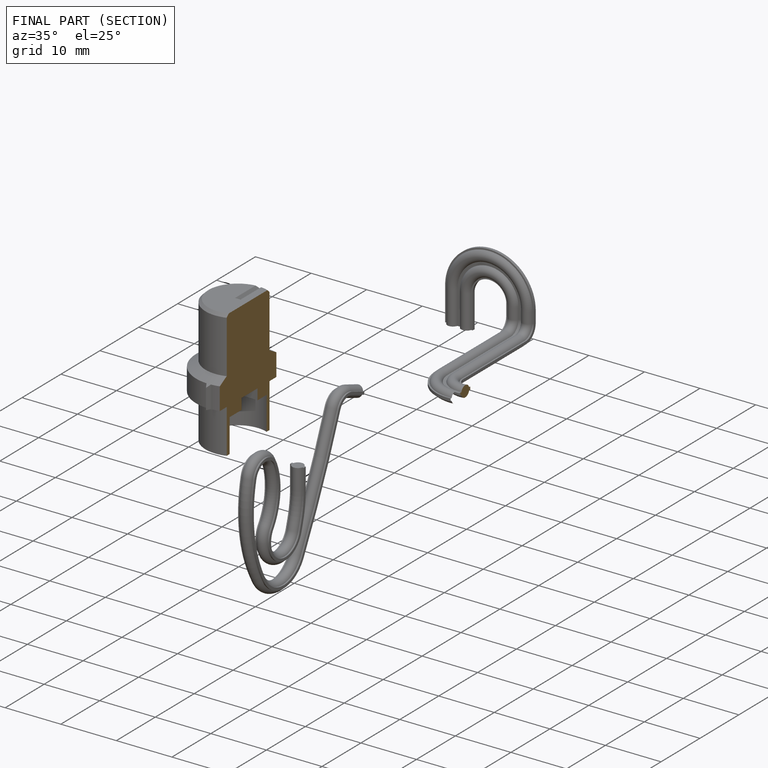
[diagram: finished part — half-section view (interior)]
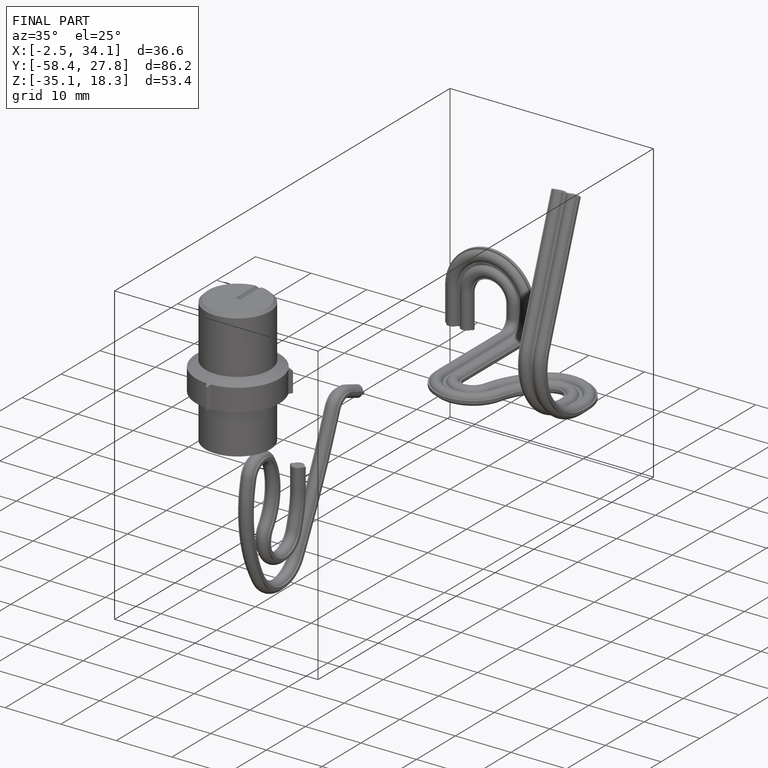
[diagram: finished part — iso view with bounding-box wireframe]
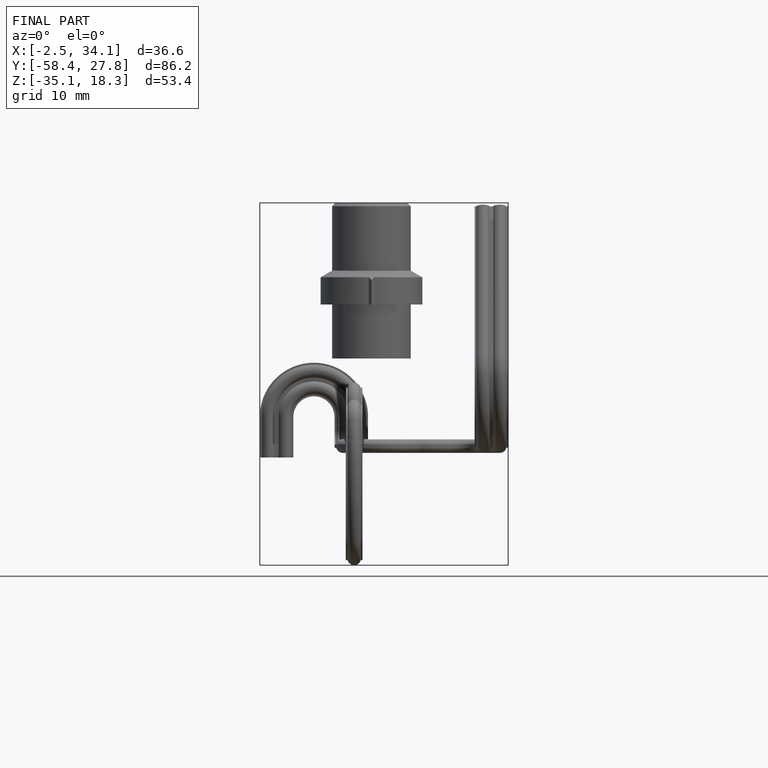
[diagram: finished part — front view with bounding-box wireframe]
